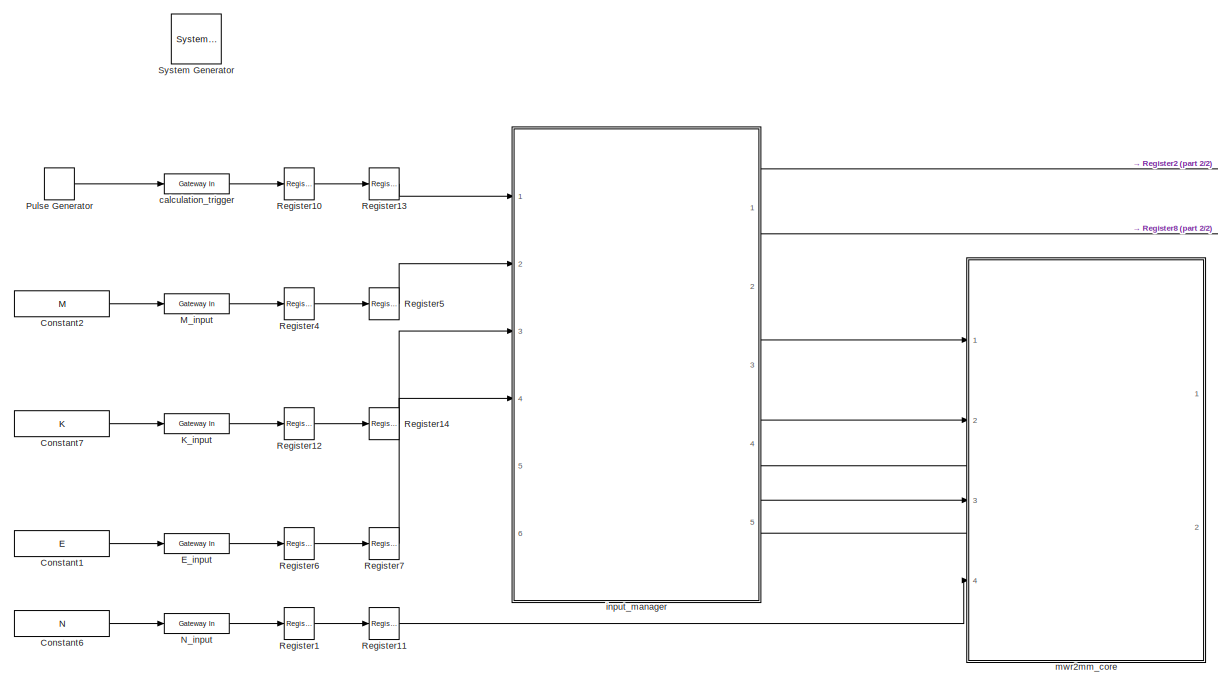
[diagram: root canvas - part 1/2, most of the canvas]
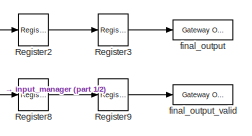
[diagram: root canvas - part 2/2, top right region]
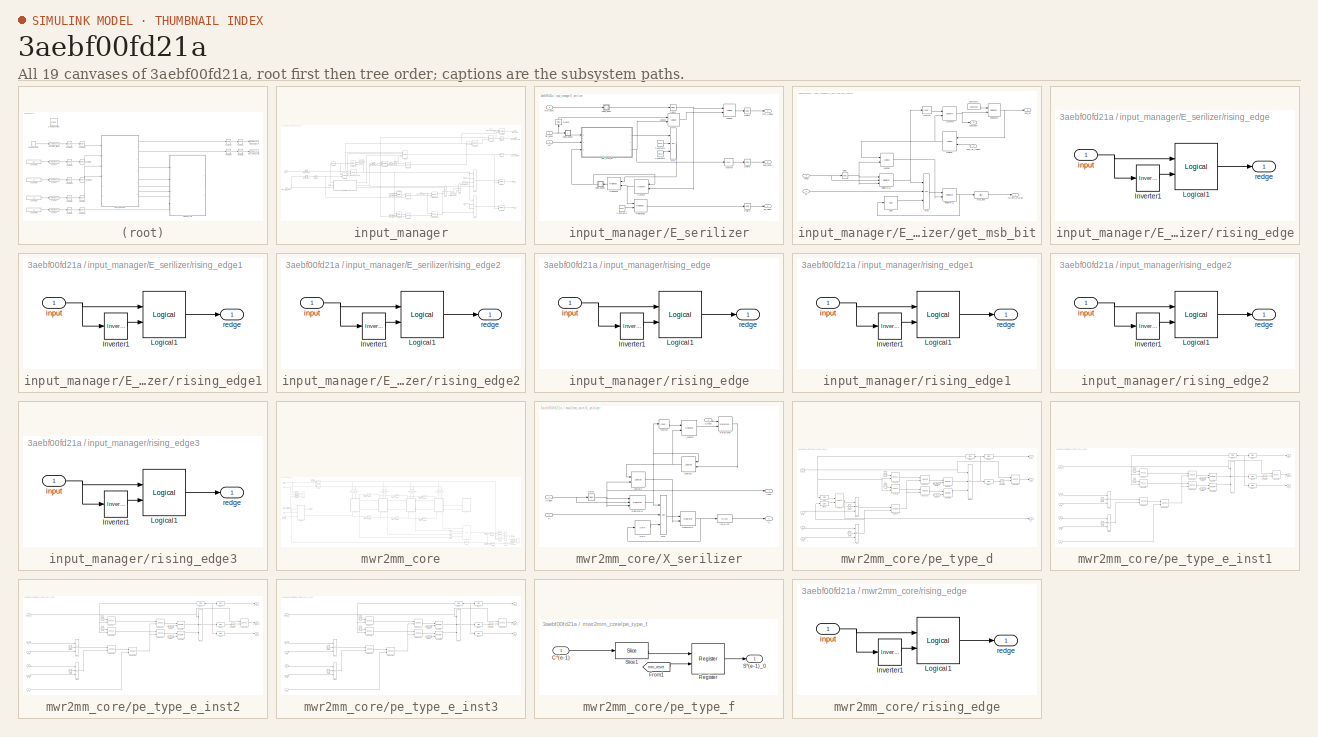
[diagram: thumbnail index - all 19 canvases of the model, root first then tree order]
MODEL slx_3aebf00fd21a
KIND model
CONFIG AbsTol = auto
CONFIG EnableMultiTasking = off
CONFIG FixedStep = auto
CONFIG MaxStep = auto
CONFIG MinStep = auto
CONFIG RelTol = 1e-3
CONFIG SampleTimeConstraint = Unconstrained
CONFIG SolverName = VariableStepAuto
CONFIG StartTime = 0.0
CONFIG StopTime = simulation_time
BLOCK [Reference]  System Generator  REF=xbsIndex_r4/ System Generator
  AttributesFormatString = System\nGenerator
  Ports = []
  SourceBlock = xbsIndex_r4/ System Generator
  SourceType = Xilinx System Generator Block
  Tag = genX
  UserDataPersistent = on
BLOCK [Constant] Constant1
  Value = E
BLOCK [Constant] Constant2
  Value = M
BLOCK [Constant] Constant6
  Value = N
BLOCK [Constant] Constant7
  Value = K
BLOCK [Reference] E_input  REF=xbsIndex_r4/Gateway In
  Ports = [1, 1]
  SourceBlock = xbsIndex_r4/Gateway In
  SourceType = Xilinx Gateway In Block
BLOCK [Reference] K_input  REF=xbsIndex_r4/Gateway In
  Ports = [1, 1]
  SourceBlock = xbsIndex_r4/Gateway In
  SourceType = Xilinx Gateway In Block
BLOCK [Reference] M_input  REF=xbsIndex_r4/Gateway In
  Ports = [1, 1]
  SourceBlock = xbsIndex_r4/Gateway In
  SourceType = Xilinx Gateway In Block
BLOCK [Reference] N_input  REF=xbsIndex_r4/Gateway In
  Ports = [1, 1]
  SourceBlock = xbsIndex_r4/Gateway In
  SourceType = Xilinx Gateway In Block
BLOCK [DiscretePulseGenerator] Pulse Generator
  Period = 10000
  PhaseDelay = 30
  Ports = [0, 1]
  SampleTime = ts
BLOCK [Reference] Register1  REF=xbsIndex_r4/Register
  Ports = [1, 1]
  SourceBlock = xbsIndex_r4/Register
  SourceType = Xilinx Register Block
BLOCK [Reference] Register10  REF=xbsIndex_r4/Register
  Ports = [1, 1]
  SourceBlock = xbsIndex_r4/Register
  SourceType = Xilinx Register Block
BLOCK [Reference] Register11  REF=xbsIndex_r4/Register
  Ports = [1, 1]
  SourceBlock = xbsIndex_r4/Register
  SourceType = Xilinx Register Block
BLOCK [Reference] Register12  REF=xbsIndex_r4/Register
  Ports = [1, 1]
  SourceBlock = xbsIndex_r4/Register
  SourceType = Xilinx Register Block
BLOCK [Reference] Register13  REF=xbsIndex_r4/Register
  Ports = [1, 1]
  SourceBlock = xbsIndex_r4/Register
  SourceType = Xilinx Register Block
BLOCK [Reference] Register14  REF=xbsIndex_r4/Register
  Ports = [1, 1]
  SourceBlock = xbsIndex_r4/Register
  SourceType = Xilinx Register Block
BLOCK [Reference] Register2  REF=xbsIndex_r4/Register
  Ports = [1, 1]
  SourceBlock = xbsIndex_r4/Register
  SourceType = Xilinx Register Block
BLOCK [Reference] Register3  REF=xbsIndex_r4/Register
  Ports = [1, 1]
  SourceBlock = xbsIndex_r4/Register
  SourceType = Xilinx Register Block
BLOCK [Reference] Register4  REF=xbsIndex_r4/Register
  Ports = [1, 1]
  SourceBlock = xbsIndex_r4/Register
  SourceType = Xilinx Register Block
BLOCK [Reference] Register5  REF=xbsIndex_r4/Register
  Ports = [1, 1]
  SourceBlock = xbsIndex_r4/Register
  SourceType = Xilinx Register Block
BLOCK [Reference] Register6  REF=xbsIndex_r4/Register
  Ports = [1, 1]
  SourceBlock = xbsIndex_r4/Register
  SourceType = Xilinx Register Block
BLOCK [Reference] Register7  REF=xbsIndex_r4/Register
  Ports = [1, 1]
  SourceBlock = xbsIndex_r4/Register
  SourceType = Xilinx Register Block
BLOCK [Reference] Register8  REF=xbsIndex_r4/Register
  Ports = [1, 1]
  SourceBlock = xbsIndex_r4/Register
  SourceType = Xilinx Register Block
BLOCK [Reference] Register9  REF=xbsIndex_r4/Register
  Ports = [1, 1]
  SourceBlock = xbsIndex_r4/Register
  SourceType = Xilinx Register Block
BLOCK [Reference] calculation_trigger  REF=xbsIndex_r4/Gateway In
  Ports = [1, 1]
  SourceBlock = xbsIndex_r4/Gateway In
  SourceType = Xilinx Gateway In Block
BLOCK [Reference] final_output  REF=xbsIndex_r4/Gateway Out
  Ports = [1, 1]
  SourceBlock = xbsIndex_r4/Gateway Out
  SourceType = Xilinx Gateway Out Block
BLOCK [Reference] final_output_valid  REF=xbsIndex_r4/Gateway Out
  Ports = [1, 1]
  SourceBlock = xbsIndex_r4/Gateway Out
  SourceType = Xilinx Gateway Out Block
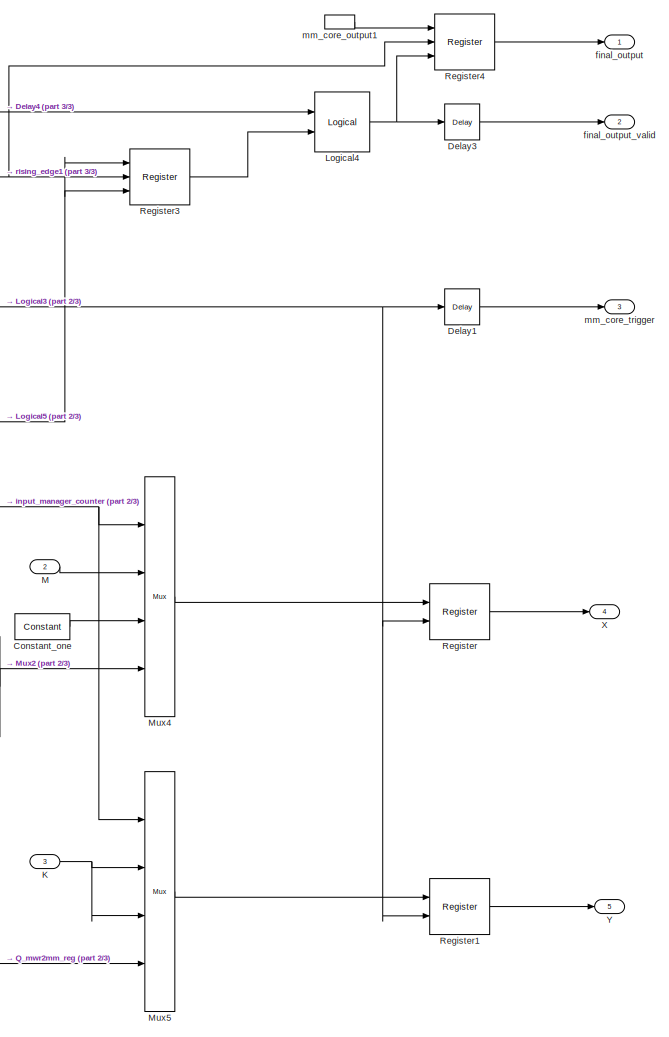
[diagram: input_manager - part 1/3, right side, full height]
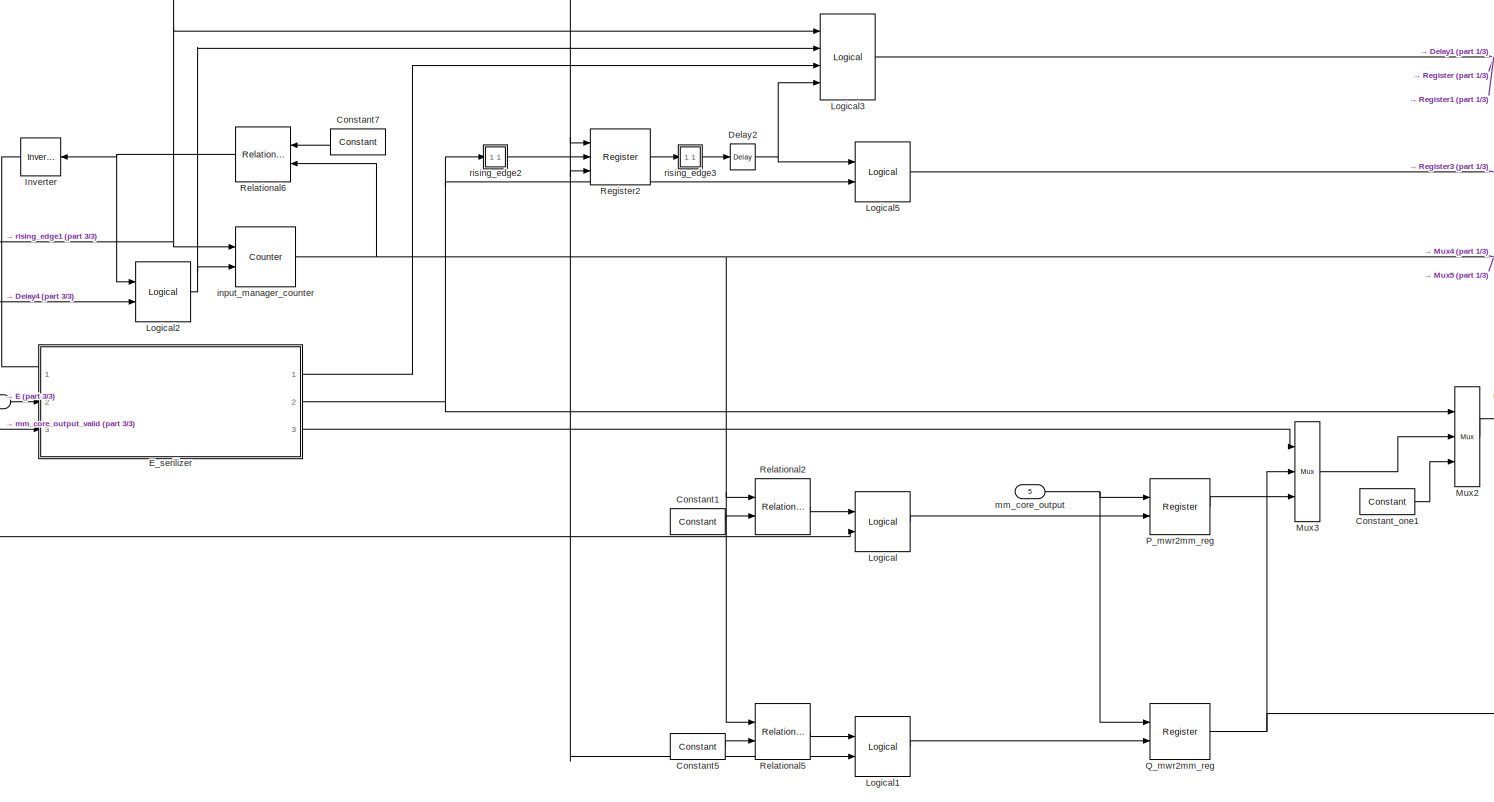
[diagram: input_manager - part 2/3, center side, full height]
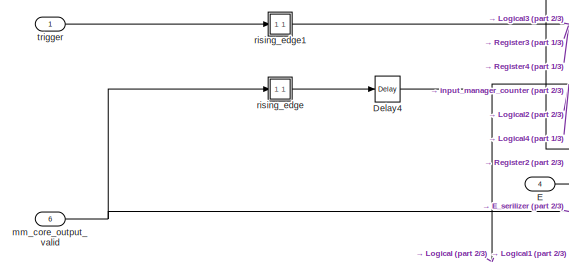
[diagram: input_manager - part 3/3, middle left region]
BLOCK [SubSystem] input_manager
  PortSchema = {"entries":[{"content":{"sides":[{"content":{"connectorIds":["In1","In2","In3","In4"]},"type":"ConnectorPlacement.EquallySpacedRectSide","uuid":"5fbe749b-9735-44fd-a2bb-776500a26cf7"},{"content":{"connectorIds":["Out1","Out2","Out3","Out4","Out5","In5","In6"],"side":"RIGHT"},"type":"ConnectorPlacement.EquallySpacedRectSide","uuid":"76eb6fff-7389-4eb3-99ce-2472142167d3"},{"content":{"connectorIds":...<+298ch>
  Ports = [6, 5]
  RequestExecContextInheritance = off
BLOCK [Reference] input_manager/Constant1  REF=xbsIndex_r4/Constant
  Ports = [0, 1]
  SourceBlock = xbsIndex_r4/Constant
  SourceType = Xilinx Constant Block Block
BLOCK [Reference] input_manager/Constant5  REF=xbsIndex_r4/Constant
  Ports = [0, 1]
  SourceBlock = xbsIndex_r4/Constant
  SourceType = Xilinx Constant Block Block
BLOCK [Reference] input_manager/Constant7  REF=xbsIndex_r4/Constant
  Ports = [0, 1]
  SourceBlock = xbsIndex_r4/Constant
  SourceType = Xilinx Constant Block Block
BLOCK [Reference] input_manager/Constant_one  REF=xbsIndex_r4/Constant
  Ports = [0, 1]
  SourceBlock = xbsIndex_r4/Constant
  SourceType = Xilinx Constant Block Block
BLOCK [Reference] input_manager/Constant_one1  REF=xbsIndex_r4/Constant
  Ports = [0, 1]
  SourceBlock = xbsIndex_r4/Constant
  SourceType = Xilinx Constant Block Block
BLOCK [Reference] input_manager/Delay1  REF=xbsIndex_r4/Delay
  Ports = [1, 1]
  SourceBlock = xbsIndex_r4/Delay
  SourceType = Xilinx Delay Block
BLOCK [Reference] input_manager/Delay2  REF=xbsIndex_r4/Delay
  Ports = [1, 1]
  SourceBlock = xbsIndex_r4/Delay
  SourceType = Xilinx Delay Block
BLOCK [Reference] input_manager/Delay3  REF=xbsIndex_r4/Delay
  Ports = [1, 1]
  SourceBlock = xbsIndex_r4/Delay
  SourceType = Xilinx Delay Block
BLOCK [Reference] input_manager/Delay4  REF=xbsIndex_r4/Delay
  Ports = [1, 1]
  SourceBlock = xbsIndex_r4/Delay
  SourceType = Xilinx Delay Block
BLOCK [Inport] input_manager/E
  Port = 4
BLOCK [SubSystem] input_manager/E_serilizer
  Ports = [3, 3]
  RequestExecContextInheritance = off
BLOCK [Reference] input_manager/E_serilizer/Constant1  REF=xbsIndex_r4/Constant
  Ports = [0, 1]
  SourceBlock = xbsIndex_r4/Constant
  SourceType = Xilinx Constant Block Block
BLOCK [Reference] input_manager/E_serilizer/Constant2  REF=xbsIndex_r4/Constant
  Ports = [0, 1]
  SourceBlock = xbsIndex_r4/Constant
  SourceType = Xilinx Constant Block Block
BLOCK [Reference] input_manager/E_serilizer/Constant3  REF=xbsIndex_r4/Constant
  Ports = [0, 1]
  SourceBlock = xbsIndex_r4/Constant
  SourceType = Xilinx Constant Block Block
BLOCK [Reference] input_manager/E_serilizer/Counter  REF=xbsIndex_r4/Counter
  Ports = [2, 1]
  SourceBlock = xbsIndex_r4/Counter
  SourceType = Xilinx Counter Block
BLOCK [Reference] input_manager/E_serilizer/Delay1  REF=xbsIndex_r4/Delay
  Ports = [1, 1]
  SourceBlock = xbsIndex_r4/Delay
  SourceType = Xilinx Delay Block
BLOCK [Reference] input_manager/E_serilizer/Delay2  REF=xbsIndex_r4/Delay
  Ports = [1, 1]
  SourceBlock = xbsIndex_r4/Delay
  SourceType = Xilinx Delay Block
BLOCK [Reference] input_manager/E_serilizer/Delay3  REF=xbsIndex_r4/Delay
  Ports = [1, 1]
  SourceBlock = xbsIndex_r4/Delay
  SourceType = Xilinx Delay Block
BLOCK [Reference] input_manager/E_serilizer/Delay4  REF=xbsIndex_r4/Delay
  Ports = [1, 1]
  SourceBlock = xbsIndex_r4/Delay
  SourceType = Xilinx Delay Block
BLOCK [Reference] input_manager/E_serilizer/Delay5  REF=xbsIndex_r4/Delay
  NameLocation = right
  Ports = [1, 1]
  SourceBlock = xbsIndex_r4/Delay
  SourceType = Xilinx Delay Block
BLOCK [Inport] input_manager/E_serilizer/E
  Port = 2
BLOCK [Reference] input_manager/E_serilizer/Inverter  REF=xbsIndex_r4/Inverter
  Ports = [1, 1]
  SourceBlock = xbsIndex_r4/Inverter
  SourceType = Xilinx Inverter Block
BLOCK [Reference] input_manager/E_serilizer/Logical1  REF=xbsIndex_r4/Logical
  Ports = [2, 1]
  SourceBlock = xbsIndex_r4/Logical
  SourceType = Xilinx Logical Block Block
BLOCK [Reference] input_manager/E_serilizer/Logical2  REF=xbsIndex_r4/Logical
  Ports = [2, 1]
  SourceBlock = xbsIndex_r4/Logical
  SourceType = Xilinx Logical Block Block
BLOCK [Reference] input_manager/E_serilizer/Mux  REF=xbsIndex_r4/Mux
  Ports = [3, 1]
  SourceBlock = xbsIndex_r4/Mux
  SourceType = Xilinx Bus Multiplexer Block
BLOCK [Reference] input_manager/E_serilizer/Relational  REF=xbsIndex_r4/Relational
  Ports = [2, 1]
  SourceBlock = xbsIndex_r4/Relational
  SourceType = Xilinx Arithmetic Relational Operator Block
BLOCK [Reference] input_manager/E_serilizer/Relational1  REF=xbsIndex_r4/Relational
  Ports = [2, 1]
  SourceBlock = xbsIndex_r4/Relational
  SourceType = Xilinx Arithmetic Relational Operator Block
BLOCK [SubSystem] input_manager/E_serilizer/get_msb_bit
  Ports = [3, 3]
  RequestExecContextInheritance = off
BLOCK [Reference] input_manager/E_serilizer/get_msb_bit/Constant6  REF=xbsIndex_r4/Constant
  Ports = [0, 1]
  SourceBlock = xbsIndex_r4/Constant
  SourceType = Xilinx Constant Block Block
BLOCK [Reference] input_manager/E_serilizer/get_msb_bit/Delay  REF=xbsIndex_r4/Delay
  Ports = [1, 1]
  SourceBlock = xbsIndex_r4/Delay
  SourceType = Xilinx Delay Block
BLOCK [Inport] input_manager/E_serilizer/get_msb_bit/E
  Port = 2
BLOCK [Reference] input_manager/E_serilizer/get_msb_bit/Inverter  REF=xbsIndex_r4/Inverter
  Ports = [1, 1]
  SourceBlock = xbsIndex_r4/Inverter
  SourceType = Xilinx Inverter Block
BLOCK [Reference] input_manager/E_serilizer/get_msb_bit/Logical1  REF=xbsIndex_r4/Logical
  Ports = [2, 1]
  SourceBlock = xbsIndex_r4/Logical
  SourceType = Xilinx Logical Block Block
BLOCK [Reference] input_manager/E_serilizer/get_msb_bit/Logical2  REF=xbsIndex_r4/Logical
  Ports = [2, 1]
  SourceBlock = xbsIndex_r4/Logical
  SourceType = Xilinx Logical Block Block
BLOCK [Reference] input_manager/E_serilizer/get_msb_bit/Mux  REF=xbsIndex_r4/Mux
  Ports = [3, 1]
  SourceBlock = xbsIndex_r4/Mux
  SourceType = Xilinx Bus Multiplexer Block
BLOCK [Reference] input_manager/E_serilizer/get_msb_bit/Register11  REF=xbsIndex_r4/Register
  Ports = [2, 1]
  SourceBlock = xbsIndex_r4/Register
  SourceType = Xilinx Register Block
BLOCK [Reference] input_manager/E_serilizer/get_msb_bit/Register12  REF=xbsIndex_r4/Register
  Ports = [3, 1]
  SourceBlock = xbsIndex_r4/Register
  SourceType = Xilinx Register Block
BLOCK [Reference] input_manager/E_serilizer/get_msb_bit/Relational  REF=xbsIndex_r4/Relational
  Ports = [2, 1]
  SourceBlock = xbsIndex_r4/Relational
  SourceType = Xilinx Arithmetic Relational Operator Block
BLOCK [Reference] input_manager/E_serilizer/get_msb_bit/Shift  REF=xbsIndex_r4/Shift
  Ports = [1, 1]
  SourceBlock = xbsIndex_r4/Shift
  SourceType = Xilinx Binary Shift Operator Block
BLOCK [Outport] input_manager/E_serilizer/get_msb_bit/current_msb_bit
BLOCK [Reference] input_manager/E_serilizer/get_msb_bit/i_counter  REF=xbsIndex_r4/Counter
  Ports = [2, 1]
  SourceBlock = xbsIndex_r4/Counter
  SourceType = Xilinx Counter Block
BLOCK [Outport] input_manager/E_serilizer/get_msb_bit/loop_en
  Port = 3
BLOCK [Outport] input_manager/E_serilizer/get_msb_bit/loop_index
  Port = 2
BLOCK [Reference] input_manager/E_serilizer/get_msb_bit/msb_slice  REF=xbsIndex_r4/Slice
  Ports = [1, 1]
  SourceBlock = xbsIndex_r4/Slice
  SourceType = Xilinx Bit Slice Extractor Block
BLOCK [Inport] input_manager/E_serilizer/get_msb_bit/next_bit_trigger
  Port = 3
BLOCK [Inport] input_manager/E_serilizer/get_msb_bit/reset
BLOCK [Inport] input_manager/E_serilizer/init_done
BLOCK [Outport] input_manager/E_serilizer/loop_done
  Port = 2
BLOCK [Inport] input_manager/E_serilizer/mm_done
  Port = 3
BLOCK [Outport] input_manager/E_serilizer/mm_trigger
BLOCK [Outport] input_manager/E_serilizer/pq_select
  Port = 3
BLOCK [SubSystem] input_manager/E_serilizer/rising_edge
  Ports = [1, 1]
  RequestExecContextInheritance = off
BLOCK [Reference] input_manager/E_serilizer/rising_edge/Inverter1  REF=xbsIndex_r4/Inverter
  Ports = [1, 1]
  SourceBlock = xbsIndex_r4/Inverter
  SourceType = Xilinx Inverter Block
BLOCK [Reference] input_manager/E_serilizer/rising_edge/Logical1  REF=xbsIndex_r4/Logical
  Ports = [2, 1]
  SourceBlock = xbsIndex_r4/Logical
  SourceType = Xilinx Logical Block Block
BLOCK [Inport] input_manager/E_serilizer/rising_edge/input
BLOCK [Outport] input_manager/E_serilizer/rising_edge/redge
BLOCK [SubSystem] input_manager/E_serilizer/rising_edge1
  Ports = [1, 1]
  RequestExecContextInheritance = off
BLOCK [Reference] input_manager/E_serilizer/rising_edge1/Inverter1  REF=xbsIndex_r4/Inverter
  Ports = [1, 1]
  SourceBlock = xbsIndex_r4/Inverter
  SourceType = Xilinx Inverter Block
BLOCK [Reference] input_manager/E_serilizer/rising_edge1/Logical1  REF=xbsIndex_r4/Logical
  Ports = [2, 1]
  SourceBlock = xbsIndex_r4/Logical
  SourceType = Xilinx Logical Block Block
BLOCK [Inport] input_manager/E_serilizer/rising_edge1/input
BLOCK [Outport] input_manager/E_serilizer/rising_edge1/redge
BLOCK [SubSystem] input_manager/E_serilizer/rising_edge2
  Ports = [1, 1]
  RequestExecContextInheritance = off
BLOCK [Reference] input_manager/E_serilizer/rising_edge2/Inverter1  REF=xbsIndex_r4/Inverter
  Ports = [1, 1]
  SourceBlock = xbsIndex_r4/Inverter
  SourceType = Xilinx Inverter Block
BLOCK [Reference] input_manager/E_serilizer/rising_edge2/Logical1  REF=xbsIndex_r4/Logical
  Ports = [2, 1]
  SourceBlock = xbsIndex_r4/Logical
  SourceType = Xilinx Logical Block Block
BLOCK [Inport] input_manager/E_serilizer/rising_edge2/input
BLOCK [Outport] input_manager/E_serilizer/rising_edge2/redge
BLOCK [Reference] input_manager/Inverter  REF=xbsIndex_r4/Inverter
  Ports = [1, 1]
  SourceBlock = xbsIndex_r4/Inverter
  SourceType = Xilinx Inverter Block
BLOCK [Inport] input_manager/K
  Port = 3
BLOCK [Reference] input_manager/Logical  REF=xbsIndex_r4/Logical
  Ports = [2, 1]
  SourceBlock = xbsIndex_r4/Logical
  SourceType = Xilinx Logical Block Block
BLOCK [Reference] input_manager/Logical1  REF=xbsIndex_r4/Logical
  Ports = [2, 1]
  SourceBlock = xbsIndex_r4/Logical
  SourceType = Xilinx Logical Block Block
BLOCK [Reference] input_manager/Logical2  REF=xbsIndex_r4/Logical
  Ports = [2, 1]
  SourceBlock = xbsIndex_r4/Logical
  SourceType = Xilinx Logical Block Block
BLOCK [Reference] input_manager/Logical3  REF=xbsIndex_r4/Logical
  Ports = [4, 1]
  SourceBlock = xbsIndex_r4/Logical
  SourceType = Xilinx Logical Block Block
BLOCK [Reference] input_manager/Logical4  REF=xbsIndex_r4/Logical
  Ports = [2, 1]
  SourceBlock = xbsIndex_r4/Logical
  SourceType = Xilinx Logical Block Block
BLOCK [Reference] input_manager/Logical5  REF=xbsIndex_r4/Logical
  Ports = [2, 1]
  SourceBlock = xbsIndex_r4/Logical
  SourceType = Xilinx Logical Block Block
BLOCK [Inport] input_manager/M
  Port = 2
BLOCK [Reference] input_manager/Mux2  REF=xbsIndex_r4/Mux
  Ports = [3, 1]
  SourceBlock = xbsIndex_r4/Mux
  SourceType = Xilinx Bus Multiplexer Block
BLOCK [Reference] input_manager/Mux3  REF=xbsIndex_r4/Mux
  Ports = [3, 1]
  SourceBlock = xbsIndex_r4/Mux
  SourceType = Xilinx Bus Multiplexer Block
BLOCK [Reference] input_manager/Mux4  REF=xbsIndex_r4/Mux
  Ports = [4, 1]
  SourceBlock = xbsIndex_r4/Mux
  SourceType = Xilinx Bus Multiplexer Block
BLOCK [Reference] input_manager/Mux5  REF=xbsIndex_r4/Mux
  Ports = [4, 1]
  SourceBlock = xbsIndex_r4/Mux
  SourceType = Xilinx Bus Multiplexer Block
BLOCK [Reference] input_manager/P_mwr2mm_reg  REF=xbsIndex_r4/Register
  Ports = [2, 1]
  SourceBlock = xbsIndex_r4/Register
  SourceType = Xilinx Register Block
BLOCK [Reference] input_manager/Q_mwr2mm_reg  REF=xbsIndex_r4/Register
  Ports = [2, 1]
  SourceBlock = xbsIndex_r4/Register
  SourceType = Xilinx Register Block
BLOCK [Reference] input_manager/Register  REF=xbsIndex_r4/Register
  Ports = [2, 1]
  SourceBlock = xbsIndex_r4/Register
  SourceType = Xilinx Register Block
BLOCK [Reference] input_manager/Register1  REF=xbsIndex_r4/Register
  Ports = [2, 1]
  SourceBlock = xbsIndex_r4/Register
  SourceType = Xilinx Register Block
BLOCK [Reference] input_manager/Register2  REF=xbsIndex_r4/Register
  Ports = [3, 1]
  SourceBlock = xbsIndex_r4/Register
  SourceType = Xilinx Register Block
BLOCK [Reference] input_manager/Register3  REF=xbsIndex_r4/Register
  Ports = [3, 1]
  SourceBlock = xbsIndex_r4/Register
  SourceType = Xilinx Register Block
BLOCK [Reference] input_manager/Register4  REF=xbsIndex_r4/Register
  Ports = [3, 1]
  SourceBlock = xbsIndex_r4/Register
  SourceType = Xilinx Register Block
BLOCK [Reference] input_manager/Relational2  REF=xbsIndex_r4/Relational
  Ports = [2, 1]
  SourceBlock = xbsIndex_r4/Relational
  SourceType = Xilinx Arithmetic Relational Operator Block
BLOCK [Reference] input_manager/Relational5  REF=xbsIndex_r4/Relational
  Ports = [2, 1]
  SourceBlock = xbsIndex_r4/Relational
  SourceType = Xilinx Arithmetic Relational Operator Block
BLOCK [Reference] input_manager/Relational6  REF=xbsIndex_r4/Relational
  Ports = [2, 1]
  SourceBlock = xbsIndex_r4/Relational
  SourceType = Xilinx Arithmetic Relational Operator Block
BLOCK [Outport] input_manager/X
  Port = 4
BLOCK [Outport] input_manager/Y
  Port = 5
BLOCK [Outport] input_manager/final_output
BLOCK [Outport] input_manager/final_output_valid
  Port = 2
BLOCK [Reference] input_manager/input_manager_counter  REF=xbsIndex_r4/Counter
  Ports = [2, 1]
  SourceBlock = xbsIndex_r4/Counter
  SourceType = Xilinx Counter Block
BLOCK [Inport] input_manager/mm_core_output
  Port = 5
BLOCK [InportShadow] input_manager/mm_core_output1
  Port = 5
BLOCK [Inport] input_manager/mm_core_output_valid
  Port = 6
BLOCK [Outport] input_manager/mm_core_trigger
  Port = 3
BLOCK [SubSystem] input_manager/rising_edge
  Ports = [1, 1]
  RequestExecContextInheritance = off
BLOCK [Reference] input_manager/rising_edge/Inverter1  REF=xbsIndex_r4/Inverter
  Ports = [1, 1]
  SourceBlock = xbsIndex_r4/Inverter
  SourceType = Xilinx Inverter Block
BLOCK [Reference] input_manager/rising_edge/Logical1  REF=xbsIndex_r4/Logical
  Ports = [2, 1]
  SourceBlock = xbsIndex_r4/Logical
  SourceType = Xilinx Logical Block Block
BLOCK [Inport] input_manager/rising_edge/input
BLOCK [Outport] input_manager/rising_edge/redge
BLOCK [SubSystem] input_manager/rising_edge1
  Ports = [1, 1]
  RequestExecContextInheritance = off
BLOCK [Reference] input_manager/rising_edge1/Inverter1  REF=xbsIndex_r4/Inverter
  Ports = [1, 1]
  SourceBlock = xbsIndex_r4/Inverter
  SourceType = Xilinx Inverter Block
BLOCK [Reference] input_manager/rising_edge1/Logical1  REF=xbsIndex_r4/Logical
  Ports = [2, 1]
  SourceBlock = xbsIndex_r4/Logical
  SourceType = Xilinx Logical Block Block
BLOCK [Inport] input_manager/rising_edge1/input
BLOCK [Outport] input_manager/rising_edge1/redge
BLOCK [SubSystem] input_manager/rising_edge2
  Ports = [1, 1]
  RequestExecContextInheritance = off
BLOCK [Reference] input_manager/rising_edge2/Inverter1  REF=xbsIndex_r4/Inverter
  Ports = [1, 1]
  SourceBlock = xbsIndex_r4/Inverter
  SourceType = Xilinx Inverter Block
BLOCK [Reference] input_manager/rising_edge2/Logical1  REF=xbsIndex_r4/Logical
  Ports = [2, 1]
  SourceBlock = xbsIndex_r4/Logical
  SourceType = Xilinx Logical Block Block
BLOCK [Inport] input_manager/rising_edge2/input
BLOCK [Outport] input_manager/rising_edge2/redge
BLOCK [SubSystem] input_manager/rising_edge3
  Ports = [1, 1]
  RequestExecContextInheritance = off
BLOCK [Reference] input_manager/rising_edge3/Inverter1  REF=xbsIndex_r4/Inverter
  Ports = [1, 1]
  SourceBlock = xbsIndex_r4/Inverter
  SourceType = Xilinx Inverter Block
BLOCK [Reference] input_manager/rising_edge3/Logical1  REF=xbsIndex_r4/Logical
  Ports = [2, 1]
  SourceBlock = xbsIndex_r4/Logical
  SourceType = Xilinx Logical Block Block
BLOCK [Inport] input_manager/rising_edge3/input
BLOCK [Outport] input_manager/rising_edge3/redge
BLOCK [Inport] input_manager/trigger
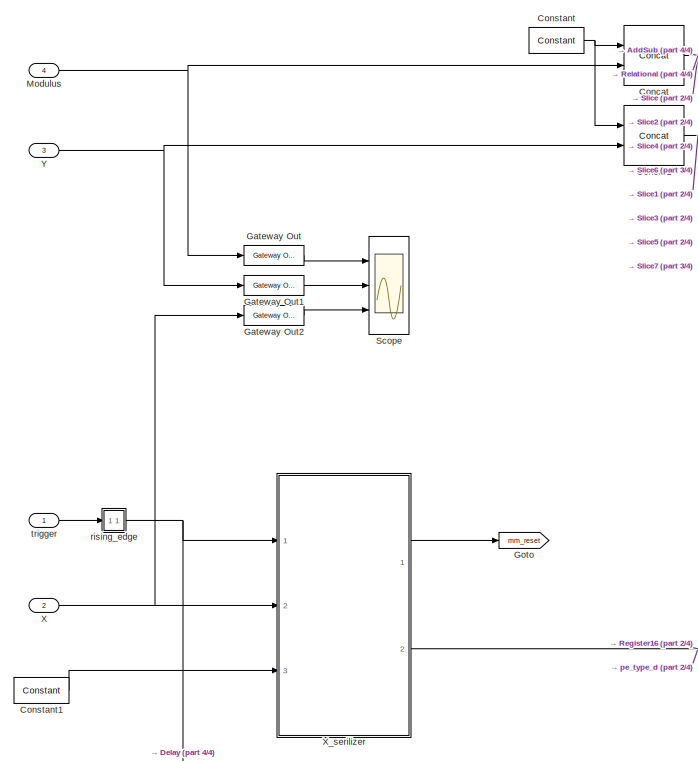
[diagram: mwr2mm_core - part 1/4, top left region]
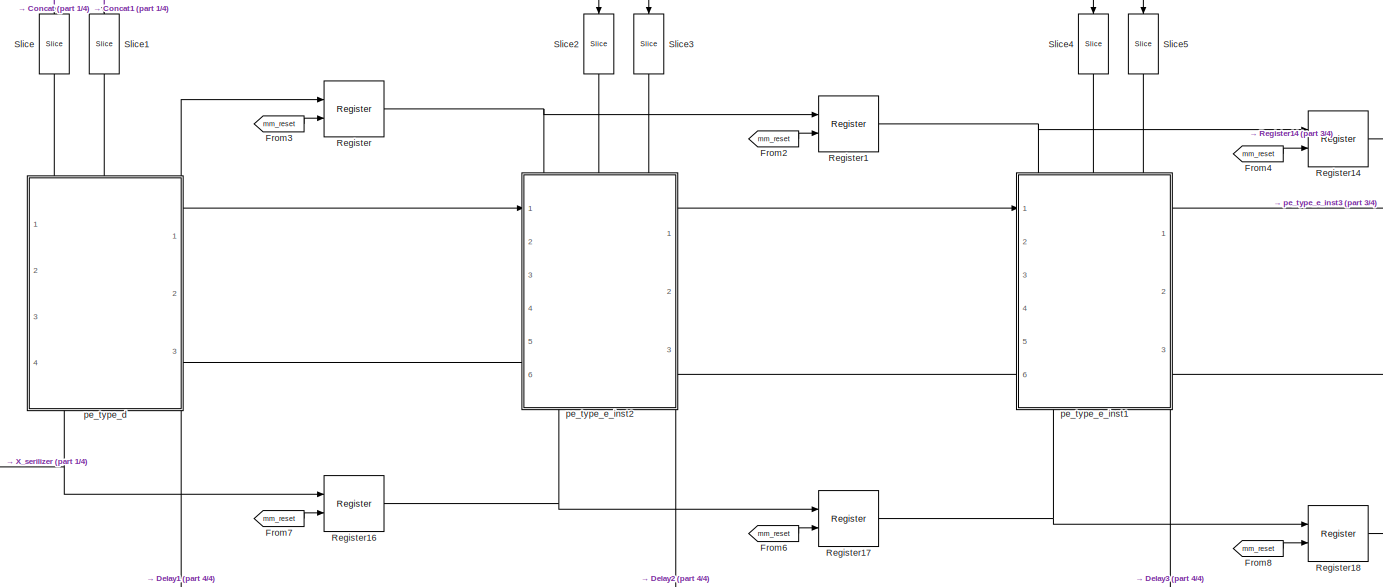
[diagram: mwr2mm_core - part 2/4, central region]
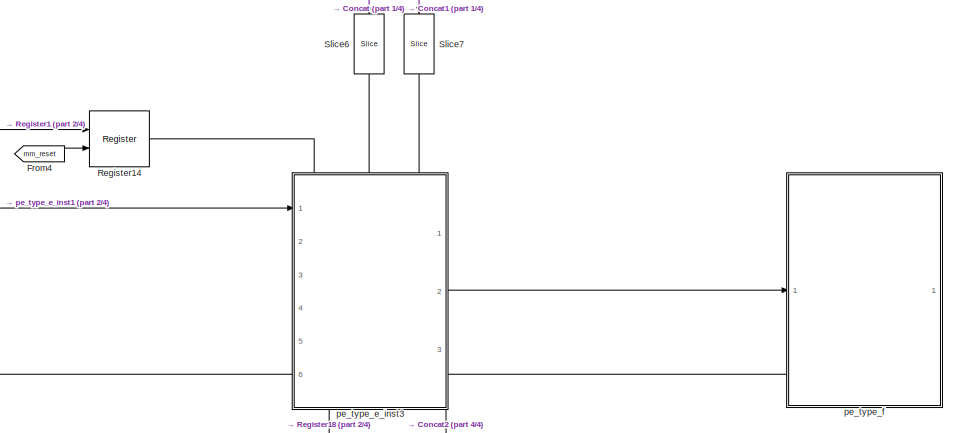
[diagram: mwr2mm_core - part 3/4, middle right region]
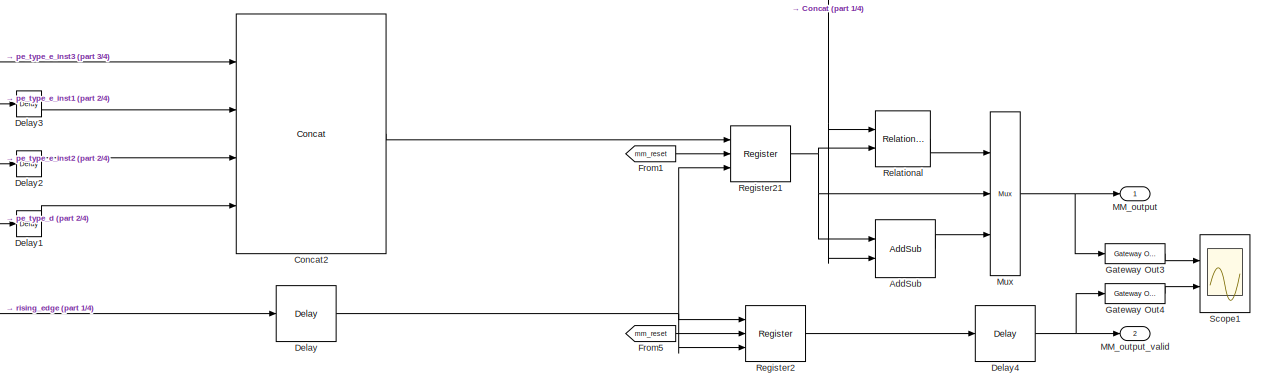
[diagram: mwr2mm_core - part 4/4, bottom right region]
BLOCK [SubSystem] mwr2mm_core
  PortSchema = {"entries":[{"content":{"sides":[{"content":{"connectorIds":["In1","In2","In3","Out1","Out2","In4"]},"type":"ConnectorPlacement.EquallySpacedRectSide","uuid":"3849742e-47e7-45e9-813d-75e7ec89f679"},{"content":{"connectorIds":[],"side":"RIGHT"},"type":"ConnectorPlacement.EquallySpacedRectSide","uuid":"56ecc40d-88ec-4579-a1b5-d15bded2ad6c"},{"content":{"connectorIds":[],"side":"TOP"},"type":"Connect...<+266ch>
  Ports = [4, 2]
  RequestExecContextInheritance = off
BLOCK [Reference] mwr2mm_core/AddSub  REF=xbsIndex_r4/AddSub
  Ports = [2, 1]
  SourceBlock = xbsIndex_r4/AddSub
  SourceType = Xilinx Adder/Subtracter Block
BLOCK [Reference] mwr2mm_core/Concat  REF=xbsIndex_r4/Concat
  Ports = [2, 1]
  SourceBlock = xbsIndex_r4/Concat
  SourceType = Xilinx Bus Concatenator Block
BLOCK [Reference] mwr2mm_core/Concat1  REF=xbsIndex_r4/Concat
  Ports = [2, 1]
  SourceBlock = xbsIndex_r4/Concat
  SourceType = Xilinx Bus Concatenator Block
BLOCK [Reference] mwr2mm_core/Concat2  REF=xbsIndex_r4/Concat
  Ports = [4, 1]
  SourceBlock = xbsIndex_r4/Concat
  SourceType = Xilinx Bus Concatenator Block
BLOCK [Reference] mwr2mm_core/Constant  REF=xbsIndex_r4/Constant
  Ports = [0, 1]
  SourceBlock = xbsIndex_r4/Constant
  SourceType = Xilinx Constant Block Block
BLOCK [Reference] mwr2mm_core/Constant1  REF=xbsIndex_r4/Constant
  Ports = [0, 1]
  SourceBlock = xbsIndex_r4/Constant
  SourceType = Xilinx Constant Block Block
BLOCK [Reference] mwr2mm_core/Delay  REF=xbsIndex_r4/Delay
  Ports = [1, 1]
  SourceBlock = xbsIndex_r4/Delay
  SourceType = Xilinx Delay Block
BLOCK [Reference] mwr2mm_core/Delay1  REF=xbsIndex_r4/Delay
  Ports = [1, 1]
  SourceBlock = xbsIndex_r4/Delay
  SourceType = Xilinx Delay Block
BLOCK [Reference] mwr2mm_core/Delay2  REF=xbsIndex_r4/Delay
  Ports = [1, 1]
  SourceBlock = xbsIndex_r4/Delay
  SourceType = Xilinx Delay Block
BLOCK [Reference] mwr2mm_core/Delay3  REF=xbsIndex_r4/Delay
  Ports = [1, 1]
  SourceBlock = xbsIndex_r4/Delay
  SourceType = Xilinx Delay Block
BLOCK [Reference] mwr2mm_core/Delay4  REF=xbsIndex_r4/Delay
  Ports = [1, 1]
  SourceBlock = xbsIndex_r4/Delay
  SourceType = Xilinx Delay Block
BLOCK [From] mwr2mm_core/From1
  GotoTag = mm_reset
  TagVisibility = global
BLOCK [From] mwr2mm_core/From2
  GotoTag = mm_reset
  TagVisibility = global
BLOCK [From] mwr2mm_core/From3
  GotoTag = mm_reset
  TagVisibility = global
BLOCK [From] mwr2mm_core/From4
  GotoTag = mm_reset
  TagVisibility = global
BLOCK [From] mwr2mm_core/From5
  GotoTag = mm_reset
  TagVisibility = global
BLOCK [From] mwr2mm_core/From6
  GotoTag = mm_reset
  TagVisibility = global
BLOCK [From] mwr2mm_core/From7
  GotoTag = mm_reset
  TagVisibility = global
BLOCK [From] mwr2mm_core/From8
  GotoTag = mm_reset
  TagVisibility = global
BLOCK [Reference] mwr2mm_core/Gateway Out  REF=xbsIndex_r4/Gateway Out
  Ports = [1, 1]
  SourceBlock = xbsIndex_r4/Gateway Out
  SourceType = Xilinx Gateway Out Block
BLOCK [Reference] mwr2mm_core/Gateway Out1  REF=xbsIndex_r4/Gateway Out
  Ports = [1, 1]
  SourceBlock = xbsIndex_r4/Gateway Out
  SourceType = Xilinx Gateway Out Block
BLOCK [Reference] mwr2mm_core/Gateway Out2  REF=xbsIndex_r4/Gateway Out
  Ports = [1, 1]
  SourceBlock = xbsIndex_r4/Gateway Out
  SourceType = Xilinx Gateway Out Block
BLOCK [Reference] mwr2mm_core/Gateway Out3  REF=xbsIndex_r4/Gateway Out
  Ports = [1, 1]
  SourceBlock = xbsIndex_r4/Gateway Out
  SourceType = Xilinx Gateway Out Block
BLOCK [Reference] mwr2mm_core/Gateway Out4  REF=xbsIndex_r4/Gateway Out
  Ports = [1, 1]
  SourceBlock = xbsIndex_r4/Gateway Out
  SourceType = Xilinx Gateway Out Block
BLOCK [Goto] mwr2mm_core/Goto
  GotoTag = mm_reset
  TagVisibility = global
BLOCK [Outport] mwr2mm_core/MM_output
BLOCK [Outport] mwr2mm_core/MM_output_valid
  Port = 2
BLOCK [Inport] mwr2mm_core/Modulus
  Port = 4
BLOCK [Reference] mwr2mm_core/Mux  REF=xbsIndex_r4/Mux
  Ports = [3, 1]
  SourceBlock = xbsIndex_r4/Mux
  SourceType = Xilinx Bus Multiplexer Block
BLOCK [Reference] mwr2mm_core/Register  REF=xbsIndex_r4/Register
  Ports = [2, 1]
  SourceBlock = xbsIndex_r4/Register
  SourceType = Xilinx Register Block
BLOCK [Reference] mwr2mm_core/Register1  REF=xbsIndex_r4/Register
  Ports = [2, 1]
  SourceBlock = xbsIndex_r4/Register
  SourceType = Xilinx Register Block
BLOCK [Reference] mwr2mm_core/Register14  REF=xbsIndex_r4/Register
  Ports = [2, 1]
  SourceBlock = xbsIndex_r4/Register
  SourceType = Xilinx Register Block
BLOCK [Reference] mwr2mm_core/Register16  REF=xbsIndex_r4/Register
  Ports = [2, 1]
  SourceBlock = xbsIndex_r4/Register
  SourceType = Xilinx Register Block
BLOCK [Reference] mwr2mm_core/Register17  REF=xbsIndex_r4/Register
  Ports = [2, 1]
  SourceBlock = xbsIndex_r4/Register
  SourceType = Xilinx Register Block
BLOCK [Reference] mwr2mm_core/Register18  REF=xbsIndex_r4/Register
  Ports = [2, 1]
  SourceBlock = xbsIndex_r4/Register
  SourceType = Xilinx Register Block
BLOCK [Reference] mwr2mm_core/Register2  REF=xbsIndex_r4/Register
  Ports = [3, 1]
  SourceBlock = xbsIndex_r4/Register
  SourceType = Xilinx Register Block
BLOCK [Reference] mwr2mm_core/Register21  REF=xbsIndex_r4/Register
  Ports = [3, 1]
  SourceBlock = xbsIndex_r4/Register
  SourceType = Xilinx Register Block
BLOCK [Reference] mwr2mm_core/Relational  REF=xbsIndex_r4/Relational
  Ports = [2, 1]
  SourceBlock = xbsIndex_r4/Relational
  SourceType = Xilinx Arithmetic Relational Operator Block
BLOCK [Scope] mwr2mm_core/Scope
  Floating = off
  NumInputPorts = 3
  Ports = [3]
  ScopeSpecificationString = Simulink.scopes.TimeScopeBlockCfg('CurrentConfiguration', extmgr.ConfigurationSet(extmgr.Configuration('Core','General UI',true),extmgr.Configuration('Core','Source UI',true),extmgr.Configuration('Sources','WiredSimulink',true,'DataLoggingVariableName','ScopeData4'),extmgr.Configuration('Visuals','Time Domain',true,'SerializedDisplays',{struct('MinYLimReal','-4140.875','MaxYLimReal','37267.875','Y...<+2709ch>
BLOCK [Scope] mwr2mm_core/Scope1
  Floating = off
  NumInputPorts = 2
  Ports = [2]
  ScopeSpecificationString = Simulink.scopes.TimeScopeBlockCfg('CurrentConfiguration', extmgr.ConfigurationSet(extmgr.Configuration('Core','General UI',true),extmgr.Configuration('Core','Source UI',true),extmgr.Configuration('Sources','WiredSimulink',true,'DataLoggingVariableName','ScopeData5'),extmgr.Configuration('Visuals','Time Domain',true,'SerializedDisplays',{struct('MinYLimReal','-5969.875','MaxYLimReal','53728.875','Y...<+2036ch>
BLOCK [Reference] mwr2mm_core/Slice  REF=xbsIndex_r4/Slice
  NameLocation = left
  Ports = [1, 1]
  SourceBlock = xbsIndex_r4/Slice
  SourceType = Xilinx Bit Slice Extractor Block
BLOCK [Reference] mwr2mm_core/Slice1  REF=xbsIndex_r4/Slice
  NameLocation = left
  Ports = [1, 1]
  SourceBlock = xbsIndex_r4/Slice
  SourceType = Xilinx Bit Slice Extractor Block
BLOCK [Reference] mwr2mm_core/Slice2  REF=xbsIndex_r4/Slice
  NameLocation = left
  Ports = [1, 1]
  SourceBlock = xbsIndex_r4/Slice
  SourceType = Xilinx Bit Slice Extractor Block
BLOCK [Reference] mwr2mm_core/Slice3  REF=xbsIndex_r4/Slice
  NameLocation = left
  Ports = [1, 1]
  SourceBlock = xbsIndex_r4/Slice
  SourceType = Xilinx Bit Slice Extractor Block
BLOCK [Reference] mwr2mm_core/Slice4  REF=xbsIndex_r4/Slice
  NameLocation = left
  Ports = [1, 1]
  SourceBlock = xbsIndex_r4/Slice
  SourceType = Xilinx Bit Slice Extractor Block
BLOCK [Reference] mwr2mm_core/Slice5  REF=xbsIndex_r4/Slice
  NameLocation = left
  Ports = [1, 1]
  SourceBlock = xbsIndex_r4/Slice
  SourceType = Xilinx Bit Slice Extractor Block
BLOCK [Reference] mwr2mm_core/Slice6  REF=xbsIndex_r4/Slice
  NameLocation = left
  Ports = [1, 1]
  SourceBlock = xbsIndex_r4/Slice
  SourceType = Xilinx Bit Slice Extractor Block
BLOCK [Reference] mwr2mm_core/Slice7  REF=xbsIndex_r4/Slice
  NameLocation = left
  Ports = [1, 1]
  SourceBlock = xbsIndex_r4/Slice
  SourceType = Xilinx Bit Slice Extractor Block
BLOCK [Inport] mwr2mm_core/X
  Port = 2
BLOCK [SubSystem] mwr2mm_core/X_serilizer
  Ports = [3, 2]
  RequestExecContextInheritance = off
BLOCK [Reference] mwr2mm_core/X_serilizer/Delay  REF=xbsIndex_r4/Delay
  Ports = [1, 1]
  SourceBlock = xbsIndex_r4/Delay
  SourceType = Xilinx Delay Block
BLOCK [Reference] mwr2mm_core/X_serilizer/Inverter  REF=xbsIndex_r4/Inverter
  Ports = [1, 1]
  SourceBlock = xbsIndex_r4/Inverter
  SourceType = Xilinx Inverter Block
BLOCK [Reference] mwr2mm_core/X_serilizer/Logical1  REF=xbsIndex_r4/Logical
  Ports = [2, 1]
  SourceBlock = xbsIndex_r4/Logical
  SourceType = Xilinx Logical Block Block
BLOCK [Reference] mwr2mm_core/X_serilizer/Logical2  REF=xbsIndex_r4/Logical
  Ports = [2, 1]
  SourceBlock = xbsIndex_r4/Logical
  SourceType = Xilinx Logical Block Block
BLOCK [Reference] mwr2mm_core/X_serilizer/Mux  REF=xbsIndex_r4/Mux
  Ports = [3, 1]
  SourceBlock = xbsIndex_r4/Mux
  SourceType = Xilinx Bus Multiplexer Block
BLOCK [Reference] mwr2mm_core/X_serilizer/Register11  REF=xbsIndex_r4/Register
  Ports = [2, 1]
  SourceBlock = xbsIndex_r4/Register
  SourceType = Xilinx Register Block
BLOCK [Reference] mwr2mm_core/X_serilizer/Register12  REF=xbsIndex_r4/Register
  Ports = [3, 1]
  SourceBlock = xbsIndex_r4/Register
  SourceType = Xilinx Register Block
BLOCK [Reference] mwr2mm_core/X_serilizer/Relational  REF=xbsIndex_r4/Relational
  Ports = [2, 1]
  SourceBlock = xbsIndex_r4/Relational
  SourceType = Xilinx Arithmetic Relational Operator Block
BLOCK [Reference] mwr2mm_core/X_serilizer/Shift  REF=xbsIndex_r4/Shift
  Ports = [1, 1]
  SourceBlock = xbsIndex_r4/Shift
  SourceType = Xilinx Binary Shift Operator Block
BLOCK [Inport] mwr2mm_core/X_serilizer/X
  Port = 2
BLOCK [Reference] mwr2mm_core/X_serilizer/i_counter  REF=xbsIndex_r4/Counter
  Ports = [2, 1]
  SourceBlock = xbsIndex_r4/Counter
  SourceType = Xilinx Counter Block
BLOCK [Reference] mwr2mm_core/X_serilizer/lsb_slice  REF=xbsIndex_r4/Slice
  Ports = [1, 1]
  SourceBlock = xbsIndex_r4/Slice
  SourceType = Xilinx Bit Slice Extractor Block
BLOCK [Inport] mwr2mm_core/X_serilizer/n_input
  Port = 3
BLOCK [Outport] mwr2mm_core/X_serilizer/reset
BLOCK [Inport] mwr2mm_core/X_serilizer/trigger
BLOCK [Outport] mwr2mm_core/X_serilizer/x_i
  Port = 2
BLOCK [Inport] mwr2mm_core/Y
  Port = 3
BLOCK [SubSystem] mwr2mm_core/pe_type_d
  PortSchema = {"entries":[{"content":{"sides":[{"content":{"connectorIds":[]},"type":"ConnectorPlacement.EquallySpacedRectSide","uuid":"139fe22c-bad5-4a8c-bb4f-0e4abe8a2134"},{"content":{"connectorIds":["In4","Out1"],"side":"RIGHT"},"type":"ConnectorPlacement.EquallySpacedRectSide","uuid":"0caa1206-8436-46b5-be2a-5ee3acf33157"},{"content":{"connectorIds":["In1","In2","Out3"],"side":"TOP"},"type":"ConnectorPlace...<+415ch>
  Ports = [4, 3]
  RequestExecContextInheritance = off
BLOCK [Outport] mwr2mm_core/pe_type_d/C^(1)
BLOCK [Reference] mwr2mm_core/pe_type_d/Concat  REF=xbsIndex_r4/Concat
  Ports = [2, 1]
  SourceBlock = xbsIndex_r4/Concat
  SourceType = Xilinx Bus Concatenator Block
BLOCK [Reference] mwr2mm_core/pe_type_d/Concat1  REF=xbsIndex_r4/Concat
  Ports = [2, 1]
  SourceBlock = xbsIndex_r4/Concat
  SourceType = Xilinx Bus Concatenator Block
BLOCK [Reference] mwr2mm_core/pe_type_d/Concat2  REF=xbsIndex_r4/Concat
  Ports = [2, 1]
  SourceBlock = xbsIndex_r4/Concat
  SourceType = Xilinx Bus Concatenator Block
BLOCK [From] mwr2mm_core/pe_type_d/From1
  GotoTag = mm_reset
  TagVisibility = global
BLOCK [From] mwr2mm_core/pe_type_d/From5
  GotoTag = mm_reset
  TagVisibility = global
BLOCK [Reference] mwr2mm_core/pe_type_d/Logical  REF=xbsIndex_r4/Logical
  Ports = [2, 1]
  SourceBlock = xbsIndex_r4/Logical
  SourceType = Xilinx Logical Block Block
BLOCK [Inport] mwr2mm_core/pe_type_d/M^(0)
BLOCK [Reference] mwr2mm_core/pe_type_d/Mux  REF=xbsIndex_r4/Mux
  Ports = [3, 1]
  SourceBlock = xbsIndex_r4/Mux
  SourceType = Xilinx Bus Multiplexer Block
BLOCK [Reference] mwr2mm_core/pe_type_d/Mux1  REF=xbsIndex_r4/Mux
  Ports = [3, 1]
  SourceBlock = xbsIndex_r4/Mux
  SourceType = Xilinx Bus Multiplexer Block
BLOCK [Reference] mwr2mm_core/pe_type_d/Mux2  REF=xbsIndex_r4/Mux
  Ports = [3, 1]
  SourceBlock = xbsIndex_r4/Mux
  SourceType = Xilinx Bus Multiplexer Block
BLOCK [Reference] mwr2mm_core/pe_type_d/Register  REF=xbsIndex_r4/Register
  Ports = [2, 1]
  SourceBlock = xbsIndex_r4/Register
  SourceType = Xilinx Register Block
BLOCK [Reference] mwr2mm_core/pe_type_d/Register1  REF=xbsIndex_r4/Register
  Ports = [2, 1]
  SourceBlock = xbsIndex_r4/Register
  SourceType = Xilinx Register Block
BLOCK [Reference] mwr2mm_core/pe_type_d/Register2  REF=xbsIndex_r4/Register
  Ports = [1, 1]
  SourceBlock = xbsIndex_r4/Register
  SourceType = Xilinx Register Block
BLOCK [Outport] mwr2mm_core/pe_type_d/S^(0)
  Port = 2
BLOCK [Inport] mwr2mm_core/pe_type_d/S^(1)_0
  Port = 4
BLOCK [Reference] mwr2mm_core/pe_type_d/Slice  REF=xbsIndex_r4/Slice
  Ports = [1, 1]
  SourceBlock = xbsIndex_r4/Slice
  SourceType = Xilinx Bit Slice Extractor Block
BLOCK [Reference] mwr2mm_core/pe_type_d/Slice1  REF=xbsIndex_r4/Slice
  Ports = [1, 1]
  SourceBlock = xbsIndex_r4/Slice
  SourceType = Xilinx Bit Slice Extractor Block
BLOCK [Reference] mwr2mm_core/pe_type_d/Slice3  REF=xbsIndex_r4/Slice
  Ports = [1, 1]
  SourceBlock = xbsIndex_r4/Slice
  SourceType = Xilinx Bit Slice Extractor Block
BLOCK [Reference] mwr2mm_core/pe_type_d/Slice4  REF=xbsIndex_r4/Slice
  Ports = [1, 1]
  SourceBlock = xbsIndex_r4/Slice
  SourceType = Xilinx Bit Slice Extractor Block
BLOCK [Reference] mwr2mm_core/pe_type_d/Slice5  REF=xbsIndex_r4/Slice
  Ports = [1, 1]
  SourceBlock = xbsIndex_r4/Slice
  SourceType = Xilinx Bit Slice Extractor Block
BLOCK [Inport] mwr2mm_core/pe_type_d/X_i
  Port = 3
BLOCK [Inport] mwr2mm_core/pe_type_d/Y^(0)
  Port = 2
BLOCK [Reference] mwr2mm_core/pe_type_d/addsub  REF=xbsIndex_r4/AddSub
  Ports = [2, 1]
  SourceBlock = xbsIndex_r4/AddSub
  SourceType = Xilinx Adder/Subtracter Block
BLOCK [Reference] mwr2mm_core/pe_type_d/addsub1  REF=xbsIndex_r4/AddSub
  Ports = [2, 1]
  SourceBlock = xbsIndex_r4/AddSub
  SourceType = Xilinx Adder/Subtracter Block
BLOCK [Reference] mwr2mm_core/pe_type_d/addsub2  REF=xbsIndex_r4/AddSub
  Ports = [2, 1]
  SourceBlock = xbsIndex_r4/AddSub
  SourceType = Xilinx Adder/Subtracter Block
BLOCK [Reference] mwr2mm_core/pe_type_d/one  REF=xbsIndex_r4/Constant
  Ports = [0, 1]
  SourceBlock = xbsIndex_r4/Constant
  SourceType = Xilinx Constant Block Block
BLOCK [Outport] mwr2mm_core/pe_type_d/q_i
  Port = 3
BLOCK [Reference] mwr2mm_core/pe_type_d/zero  REF=xbsIndex_r4/Constant
  Ports = [0, 1]
  SourceBlock = xbsIndex_r4/Constant
  SourceType = Xilinx Constant Block Block
BLOCK [Reference] mwr2mm_core/pe_type_d/zero1  REF=xbsIndex_r4/Constant
  Ports = [0, 1]
  SourceBlock = xbsIndex_r4/Constant
  SourceType = Xilinx Constant Block Block
BLOCK [Reference] mwr2mm_core/pe_type_d/zero2  REF=xbsIndex_r4/Constant
  Ports = [0, 1]
  SourceBlock = xbsIndex_r4/Constant
  SourceType = Xilinx Constant Block Block
BLOCK [SubSystem] mwr2mm_core/pe_type_e_inst1
  PortSchema = {"entries":[{"content":{"sides":[{"content":{"connectorIds":["Out3","In1"]},"type":"ConnectorPlacement.EquallySpacedRectSide","uuid":"7c8435b2-413b-47b3-86e2-fbe621383b46"},{"content":{"connectorIds":["In6","Out1"],"side":"RIGHT"},"type":"ConnectorPlacement.EquallySpacedRectSide","uuid":"f6a32e17-79c6-4fcd-9120-5459a6da7349"},{"content":{"connectorIds":["In2","In3","In4"],"side":"TOP"},"type":"Con...<+426ch>  <repeated x3 — deduplicated; at blocks: pe_type_e_inst1, pe_type_e_inst2, pe_type_e_inst3>
  Ports = [6, 3]
  RequestExecContextInheritance = off
BLOCK [Inport] mwr2mm_core/pe_type_e_inst1/C^(j)
BLOCK [Outport] mwr2mm_core/pe_type_e_inst1/C^(j+1)
BLOCK [Reference] mwr2mm_core/pe_type_e_inst1/Concat  REF=xbsIndex_r4/Concat
  Ports = [2, 1]
  SourceBlock = xbsIndex_r4/Concat
  SourceType = Xilinx Bus Concatenator Block
BLOCK [Reference] mwr2mm_core/pe_type_e_inst1/Concat1  REF=xbsIndex_r4/Concat
  Ports = [2, 1]
  SourceBlock = xbsIndex_r4/Concat
  SourceType = Xilinx Bus Concatenator Block
BLOCK [Reference] mwr2mm_core/pe_type_e_inst1/Concat2  REF=xbsIndex_r4/Concat
  Ports = [2, 1]
  SourceBlock = xbsIndex_r4/Concat
  SourceType = Xilinx Bus Concatenator Block
BLOCK [From] mwr2mm_core/pe_type_e_inst1/From1
  GotoTag = mm_reset
  TagVisibility = global
BLOCK [From] mwr2mm_core/pe_type_e_inst1/From5
  GotoTag = mm_reset
  TagVisibility = global
BLOCK [Inport] mwr2mm_core/pe_type_e_inst1/M^(j)
  Port = 3
BLOCK [Reference] mwr2mm_core/pe_type_e_inst1/Mux  REF=xbsIndex_r4/Mux
  Ports = [3, 1]
  SourceBlock = xbsIndex_r4/Mux
  SourceType = Xilinx Bus Multiplexer Block
BLOCK [Reference] mwr2mm_core/pe_type_e_inst1/Mux1  REF=xbsIndex_r4/Mux
  Ports = [3, 1]
  SourceBlock = xbsIndex_r4/Mux
  SourceType = Xilinx Bus Multiplexer Block
BLOCK [Reference] mwr2mm_core/pe_type_e_inst1/Mux2  REF=xbsIndex_r4/Mux
  Ports = [3, 1]
  SourceBlock = xbsIndex_r4/Mux
  SourceType = Xilinx Bus Multiplexer Block
BLOCK [Reference] mwr2mm_core/pe_type_e_inst1/Register  REF=xbsIndex_r4/Register
  Ports = [2, 1]
  SourceBlock = xbsIndex_r4/Register
  SourceType = Xilinx Register Block
BLOCK [Reference] mwr2mm_core/pe_type_e_inst1/Register1  REF=xbsIndex_r4/Register
  Ports = [2, 1]
  SourceBlock = xbsIndex_r4/Register
  SourceType = Xilinx Register Block
BLOCK [Reference] mwr2mm_core/pe_type_e_inst1/Register2  REF=xbsIndex_r4/Register
  Ports = [1, 1]
  SourceBlock = xbsIndex_r4/Register
  SourceType = Xilinx Register Block
BLOCK [Outport] mwr2mm_core/pe_type_e_inst1/S^(j)_0
  Port = 3
BLOCK [Outport] mwr2mm_core/pe_type_e_inst1/S^(j)_w-1_1
  Port = 2
BLOCK [Inport] mwr2mm_core/pe_type_e_inst1/S^(j+1)_0
  Port = 6
BLOCK [Reference] mwr2mm_core/pe_type_e_inst1/Slice1  REF=xbsIndex_r4/Slice
  Ports = [1, 1]
  SourceBlock = xbsIndex_r4/Slice
  SourceType = Xilinx Bit Slice Extractor Block
BLOCK [Reference] mwr2mm_core/pe_type_e_inst1/Slice3  REF=xbsIndex_r4/Slice
  Ports = [1, 1]
  SourceBlock = xbsIndex_r4/Slice
  SourceType = Xilinx Bit Slice Extractor Block
BLOCK [Reference] mwr2mm_core/pe_type_e_inst1/Slice4  REF=xbsIndex_r4/Slice
  Ports = [1, 1]
  SourceBlock = xbsIndex_r4/Slice
  SourceType = Xilinx Bit Slice Extractor Block
BLOCK [Reference] mwr2mm_core/pe_type_e_inst1/Slice5  REF=xbsIndex_r4/Slice
  Ports = [1, 1]
  SourceBlock = xbsIndex_r4/Slice
  SourceType = Xilinx Bit Slice Extractor Block
BLOCK [Inport] mwr2mm_core/pe_type_e_inst1/X_i
  Port = 5
BLOCK [Inport] mwr2mm_core/pe_type_e_inst1/Y^(j)
  Port = 4
BLOCK [Reference] mwr2mm_core/pe_type_e_inst1/addsub  REF=xbsIndex_r4/AddSub
  Ports = [2, 1]
  SourceBlock = xbsIndex_r4/AddSub
  SourceType = Xilinx Adder/Subtracter Block
BLOCK [Reference] mwr2mm_core/pe_type_e_inst1/addsub1  REF=xbsIndex_r4/AddSub
  Ports = [2, 1]
  SourceBlock = xbsIndex_r4/AddSub
  SourceType = Xilinx Adder/Subtracter Block
BLOCK [Reference] mwr2mm_core/pe_type_e_inst1/addsub2  REF=xbsIndex_r4/AddSub
  Ports = [2, 1]
  SourceBlock = xbsIndex_r4/AddSub
  SourceType = Xilinx Adder/Subtracter Block
BLOCK [Reference] mwr2mm_core/pe_type_e_inst1/addsub3  REF=xbsIndex_r4/AddSub
  Ports = [2, 1]
  SourceBlock = xbsIndex_r4/AddSub
  SourceType = Xilinx Adder/Subtracter Block
BLOCK [Reference] mwr2mm_core/pe_type_e_inst1/one  REF=xbsIndex_r4/Constant
  Ports = [0, 1]
  SourceBlock = xbsIndex_r4/Constant
  SourceType = Xilinx Constant Block Block
BLOCK [Inport] mwr2mm_core/pe_type_e_inst1/q_i
  Port = 2
BLOCK [Reference] mwr2mm_core/pe_type_e_inst1/zero  REF=xbsIndex_r4/Constant
  Ports = [0, 1]
  SourceBlock = xbsIndex_r4/Constant
  SourceType = Xilinx Constant Block Block
BLOCK [Reference] mwr2mm_core/pe_type_e_inst1/zero1  REF=xbsIndex_r4/Constant
  Ports = [0, 1]
  SourceBlock = xbsIndex_r4/Constant
  SourceType = Xilinx Constant Block Block
BLOCK [Reference] mwr2mm_core/pe_type_e_inst1/zero2  REF=xbsIndex_r4/Constant
  Ports = [0, 1]
  SourceBlock = xbsIndex_r4/Constant
  SourceType = Xilinx Constant Block Block
BLOCK [SubSystem] mwr2mm_core/pe_type_e_inst2
  Ports = [6, 3]
  RequestExecContextInheritance = off
BLOCK [Inport] mwr2mm_core/pe_type_e_inst2/C^(j)
BLOCK [Outport] mwr2mm_core/pe_type_e_inst2/C^(j+1)
BLOCK [Reference] mwr2mm_core/pe_type_e_inst2/Concat  REF=xbsIndex_r4/Concat
  Ports = [2, 1]
  SourceBlock = xbsIndex_r4/Concat
  SourceType = Xilinx Bus Concatenator Block
BLOCK [Reference] mwr2mm_core/pe_type_e_inst2/Concat1  REF=xbsIndex_r4/Concat
  Ports = [2, 1]
  SourceBlock = xbsIndex_r4/Concat
  SourceType = Xilinx Bus Concatenator Block
BLOCK [Reference] mwr2mm_core/pe_type_e_inst2/Concat2  REF=xbsIndex_r4/Concat
  Ports = [2, 1]
  SourceBlock = xbsIndex_r4/Concat
  SourceType = Xilinx Bus Concatenator Block
BLOCK [From] mwr2mm_core/pe_type_e_inst2/From1
  GotoTag = mm_reset
  TagVisibility = global
BLOCK [From] mwr2mm_core/pe_type_e_inst2/From5
  GotoTag = mm_reset
  TagVisibility = global
BLOCK [Inport] mwr2mm_core/pe_type_e_inst2/M^(j)
  Port = 3
BLOCK [Reference] mwr2mm_core/pe_type_e_inst2/Mux  REF=xbsIndex_r4/Mux
  Ports = [3, 1]
  SourceBlock = xbsIndex_r4/Mux
  SourceType = Xilinx Bus Multiplexer Block
BLOCK [Reference] mwr2mm_core/pe_type_e_inst2/Mux1  REF=xbsIndex_r4/Mux
  Ports = [3, 1]
  SourceBlock = xbsIndex_r4/Mux
  SourceType = Xilinx Bus Multiplexer Block
BLOCK [Reference] mwr2mm_core/pe_type_e_inst2/Mux2  REF=xbsIndex_r4/Mux
  Ports = [3, 1]
  SourceBlock = xbsIndex_r4/Mux
  SourceType = Xilinx Bus Multiplexer Block
BLOCK [Reference] mwr2mm_core/pe_type_e_inst2/Register  REF=xbsIndex_r4/Register
  Ports = [2, 1]
  SourceBlock = xbsIndex_r4/Register
  SourceType = Xilinx Register Block
BLOCK [Reference] mwr2mm_core/pe_type_e_inst2/Register1  REF=xbsIndex_r4/Register
  Ports = [2, 1]
  SourceBlock = xbsIndex_r4/Register
  SourceType = Xilinx Register Block
BLOCK [Reference] mwr2mm_core/pe_type_e_inst2/Register2  REF=xbsIndex_r4/Register
  Ports = [1, 1]
  SourceBlock = xbsIndex_r4/Register
  SourceType = Xilinx Register Block
BLOCK [Outport] mwr2mm_core/pe_type_e_inst2/S^(j)_0
  Port = 3
BLOCK [Outport] mwr2mm_core/pe_type_e_inst2/S^(j)_w-1_1
  Port = 2
BLOCK [Inport] mwr2mm_core/pe_type_e_inst2/S^(j+1)_0
  Port = 6
BLOCK [Reference] mwr2mm_core/pe_type_e_inst2/Slice1  REF=xbsIndex_r4/Slice
  Ports = [1, 1]
  SourceBlock = xbsIndex_r4/Slice
  SourceType = Xilinx Bit Slice Extractor Block
BLOCK [Reference] mwr2mm_core/pe_type_e_inst2/Slice3  REF=xbsIndex_r4/Slice
  Ports = [1, 1]
  SourceBlock = xbsIndex_r4/Slice
  SourceType = Xilinx Bit Slice Extractor Block
BLOCK [Reference] mwr2mm_core/pe_type_e_inst2/Slice4  REF=xbsIndex_r4/Slice
  Ports = [1, 1]
  SourceBlock = xbsIndex_r4/Slice
  SourceType = Xilinx Bit Slice Extractor Block
BLOCK [Reference] mwr2mm_core/pe_type_e_inst2/Slice5  REF=xbsIndex_r4/Slice
  Ports = [1, 1]
  SourceBlock = xbsIndex_r4/Slice
  SourceType = Xilinx Bit Slice Extractor Block
BLOCK [Inport] mwr2mm_core/pe_type_e_inst2/X_i
  Port = 5
BLOCK [Inport] mwr2mm_core/pe_type_e_inst2/Y^(j)
  Port = 4
BLOCK [Reference] mwr2mm_core/pe_type_e_inst2/addsub  REF=xbsIndex_r4/AddSub
  Ports = [2, 1]
  SourceBlock = xbsIndex_r4/AddSub
  SourceType = Xilinx Adder/Subtracter Block
BLOCK [Reference] mwr2mm_core/pe_type_e_inst2/addsub1  REF=xbsIndex_r4/AddSub
  Ports = [2, 1]
  SourceBlock = xbsIndex_r4/AddSub
  SourceType = Xilinx Adder/Subtracter Block
BLOCK [Reference] mwr2mm_core/pe_type_e_inst2/addsub2  REF=xbsIndex_r4/AddSub
  Ports = [2, 1]
  SourceBlock = xbsIndex_r4/AddSub
  SourceType = Xilinx Adder/Subtracter Block
BLOCK [Reference] mwr2mm_core/pe_type_e_inst2/addsub3  REF=xbsIndex_r4/AddSub
  Ports = [2, 1]
  SourceBlock = xbsIndex_r4/AddSub
  SourceType = Xilinx Adder/Subtracter Block
BLOCK [Reference] mwr2mm_core/pe_type_e_inst2/one  REF=xbsIndex_r4/Constant
  Ports = [0, 1]
  SourceBlock = xbsIndex_r4/Constant
  SourceType = Xilinx Constant Block Block
BLOCK [Inport] mwr2mm_core/pe_type_e_inst2/q_i
  Port = 2
BLOCK [Reference] mwr2mm_core/pe_type_e_inst2/zero  REF=xbsIndex_r4/Constant
  Ports = [0, 1]
  SourceBlock = xbsIndex_r4/Constant
  SourceType = Xilinx Constant Block Block
BLOCK [Reference] mwr2mm_core/pe_type_e_inst2/zero1  REF=xbsIndex_r4/Constant
  Ports = [0, 1]
  SourceBlock = xbsIndex_r4/Constant
  SourceType = Xilinx Constant Block Block
BLOCK [Reference] mwr2mm_core/pe_type_e_inst2/zero2  REF=xbsIndex_r4/Constant
  Ports = [0, 1]
  SourceBlock = xbsIndex_r4/Constant
  SourceType = Xilinx Constant Block Block
BLOCK [SubSystem] mwr2mm_core/pe_type_e_inst3
  Ports = [6, 3]
  RequestExecContextInheritance = off
BLOCK [Inport] mwr2mm_core/pe_type_e_inst3/C^(j)
BLOCK [Outport] mwr2mm_core/pe_type_e_inst3/C^(j+1)
BLOCK [Reference] mwr2mm_core/pe_type_e_inst3/Concat  REF=xbsIndex_r4/Concat
  Ports = [2, 1]
  SourceBlock = xbsIndex_r4/Concat
  SourceType = Xilinx Bus Concatenator Block
BLOCK [Reference] mwr2mm_core/pe_type_e_inst3/Concat1  REF=xbsIndex_r4/Concat
  Ports = [2, 1]
  SourceBlock = xbsIndex_r4/Concat
  SourceType = Xilinx Bus Concatenator Block
BLOCK [Reference] mwr2mm_core/pe_type_e_inst3/Concat2  REF=xbsIndex_r4/Concat
  Ports = [2, 1]
  SourceBlock = xbsIndex_r4/Concat
  SourceType = Xilinx Bus Concatenator Block
BLOCK [From] mwr2mm_core/pe_type_e_inst3/From1
  GotoTag = mm_reset
  TagVisibility = global
BLOCK [From] mwr2mm_core/pe_type_e_inst3/From5
  GotoTag = mm_reset
  TagVisibility = global
BLOCK [Inport] mwr2mm_core/pe_type_e_inst3/M^(j)
  Port = 3
BLOCK [Reference] mwr2mm_core/pe_type_e_inst3/Mux  REF=xbsIndex_r4/Mux
  Ports = [3, 1]
  SourceBlock = xbsIndex_r4/Mux
  SourceType = Xilinx Bus Multiplexer Block
BLOCK [Reference] mwr2mm_core/pe_type_e_inst3/Mux1  REF=xbsIndex_r4/Mux
  Ports = [3, 1]
  SourceBlock = xbsIndex_r4/Mux
  SourceType = Xilinx Bus Multiplexer Block
BLOCK [Reference] mwr2mm_core/pe_type_e_inst3/Mux2  REF=xbsIndex_r4/Mux
  Ports = [3, 1]
  SourceBlock = xbsIndex_r4/Mux
  SourceType = Xilinx Bus Multiplexer Block
BLOCK [Reference] mwr2mm_core/pe_type_e_inst3/Register  REF=xbsIndex_r4/Register
  Ports = [2, 1]
  SourceBlock = xbsIndex_r4/Register
  SourceType = Xilinx Register Block
BLOCK [Reference] mwr2mm_core/pe_type_e_inst3/Register1  REF=xbsIndex_r4/Register
  Ports = [2, 1]
  SourceBlock = xbsIndex_r4/Register
  SourceType = Xilinx Register Block
BLOCK [Reference] mwr2mm_core/pe_type_e_inst3/Register2  REF=xbsIndex_r4/Register
  Ports = [1, 1]
  SourceBlock = xbsIndex_r4/Register
  SourceType = Xilinx Register Block
BLOCK [Outport] mwr2mm_core/pe_type_e_inst3/S^(j)_0
  Port = 3
BLOCK [Outport] mwr2mm_core/pe_type_e_inst3/S^(j)_w-1_1
  Port = 2
BLOCK [Inport] mwr2mm_core/pe_type_e_inst3/S^(j+1)_0
  Port = 6
BLOCK [Reference] mwr2mm_core/pe_type_e_inst3/Slice1  REF=xbsIndex_r4/Slice
  Ports = [1, 1]
  SourceBlock = xbsIndex_r4/Slice
  SourceType = Xilinx Bit Slice Extractor Block
BLOCK [Reference] mwr2mm_core/pe_type_e_inst3/Slice3  REF=xbsIndex_r4/Slice
  Ports = [1, 1]
  SourceBlock = xbsIndex_r4/Slice
  SourceType = Xilinx Bit Slice Extractor Block
BLOCK [Reference] mwr2mm_core/pe_type_e_inst3/Slice4  REF=xbsIndex_r4/Slice
  Ports = [1, 1]
  SourceBlock = xbsIndex_r4/Slice
  SourceType = Xilinx Bit Slice Extractor Block
BLOCK [Reference] mwr2mm_core/pe_type_e_inst3/Slice5  REF=xbsIndex_r4/Slice
  Ports = [1, 1]
  SourceBlock = xbsIndex_r4/Slice
  SourceType = Xilinx Bit Slice Extractor Block
BLOCK [Inport] mwr2mm_core/pe_type_e_inst3/X_i
  Port = 5
BLOCK [Inport] mwr2mm_core/pe_type_e_inst3/Y^(j)
  Port = 4
BLOCK [Reference] mwr2mm_core/pe_type_e_inst3/addsub  REF=xbsIndex_r4/AddSub
  Ports = [2, 1]
  SourceBlock = xbsIndex_r4/AddSub
  SourceType = Xilinx Adder/Subtracter Block
BLOCK [Reference] mwr2mm_core/pe_type_e_inst3/addsub1  REF=xbsIndex_r4/AddSub
  Ports = [2, 1]
  SourceBlock = xbsIndex_r4/AddSub
  SourceType = Xilinx Adder/Subtracter Block
BLOCK [Reference] mwr2mm_core/pe_type_e_inst3/addsub2  REF=xbsIndex_r4/AddSub
  Ports = [2, 1]
  SourceBlock = xbsIndex_r4/AddSub
  SourceType = Xilinx Adder/Subtracter Block
BLOCK [Reference] mwr2mm_core/pe_type_e_inst3/addsub3  REF=xbsIndex_r4/AddSub
  Ports = [2, 1]
  SourceBlock = xbsIndex_r4/AddSub
  SourceType = Xilinx Adder/Subtracter Block
BLOCK [Reference] mwr2mm_core/pe_type_e_inst3/one  REF=xbsIndex_r4/Constant
  Ports = [0, 1]
  SourceBlock = xbsIndex_r4/Constant
  SourceType = Xilinx Constant Block Block
BLOCK [Inport] mwr2mm_core/pe_type_e_inst3/q_i
  Port = 2
BLOCK [Reference] mwr2mm_core/pe_type_e_inst3/zero  REF=xbsIndex_r4/Constant
  Ports = [0, 1]
  SourceBlock = xbsIndex_r4/Constant
  SourceType = Xilinx Constant Block Block
BLOCK [Reference] mwr2mm_core/pe_type_e_inst3/zero1  REF=xbsIndex_r4/Constant
  Ports = [0, 1]
  SourceBlock = xbsIndex_r4/Constant
  SourceType = Xilinx Constant Block Block
BLOCK [Reference] mwr2mm_core/pe_type_e_inst3/zero2  REF=xbsIndex_r4/Constant
  Ports = [0, 1]
  SourceBlock = xbsIndex_r4/Constant
  SourceType = Xilinx Constant Block Block
BLOCK [SubSystem] mwr2mm_core/pe_type_f
  PortSchema = {"entries":[{"content":{"sides":[{"content":{"connectorIds":["Out1","In1"]},"type":"ConnectorPlacement.EquallySpacedRectSide","uuid":"7c8435b2-413b-47b3-86e2-fbe621383b46"},{"content":{"connectorIds":[],"side":"RIGHT"},"type":"ConnectorPlacement.EquallySpacedRectSide","uuid":"f6a32e17-79c6-4fcd-9120-5459a6da7349"},{"content":{"connectorIds":[],"side":"TOP"},"type":"ConnectorPlacement.EquallySpaced...<+385ch>
  Ports = [1, 1]
  RequestExecContextInheritance = off
BLOCK [Inport] mwr2mm_core/pe_type_f/C^(e-1)
BLOCK [From] mwr2mm_core/pe_type_f/From1
  GotoTag = mm_reset
  TagVisibility = global
BLOCK [Reference] mwr2mm_core/pe_type_f/Register  REF=xbsIndex_r4/Register
  Ports = [2, 1]
  SourceBlock = xbsIndex_r4/Register
  SourceType = Xilinx Register Block
BLOCK [Outport] mwr2mm_core/pe_type_f/S^(e-1)_0
BLOCK [Reference] mwr2mm_core/pe_type_f/Slice1  REF=xbsIndex_r4/Slice
  Ports = [1, 1]
  SourceBlock = xbsIndex_r4/Slice
  SourceType = Xilinx Bit Slice Extractor Block
BLOCK [SubSystem] mwr2mm_core/rising_edge
  Ports = [1, 1]
  RequestExecContextInheritance = off
BLOCK [Reference] mwr2mm_core/rising_edge/Inverter1  REF=xbsIndex_r4/Inverter
  Ports = [1, 1]
  SourceBlock = xbsIndex_r4/Inverter
  SourceType = Xilinx Inverter Block
BLOCK [Reference] mwr2mm_core/rising_edge/Logical1  REF=xbsIndex_r4/Logical
  Ports = [2, 1]
  SourceBlock = xbsIndex_r4/Logical
  SourceType = Xilinx Logical Block Block
BLOCK [Inport] mwr2mm_core/rising_edge/input
BLOCK [Outport] mwr2mm_core/rising_edge/redge
BLOCK [Inport] mwr2mm_core/trigger
LINE Constant1:1 -> E_input:1
LINE Constant2:1 -> M_input:1
LINE Constant6:1 -> N_input:1
LINE Constant7:1 -> K_input:1
LINE E_input:1 -> Register6:1
LINE K_input:1 -> Register12:1
LINE M_input:1 -> Register4:1
LINE N_input:1 -> Register1:1
LINE Pulse Generator:1 -> calculation_trigger:1
LINE Register10:1 -> Register13:1
LINE Register11:1 -> mwr2mm_core:4
LINE Register12:1 -> Register14:1
LINE Register13:1 -> input_manager:1
LINE Register14:1 -> input_manager:3
LINE Register1:1 -> Register11:1
LINE Register2:1 -> Register3:1
LINE Register3:1 -> final_output:1
LINE Register4:1 -> Register5:1
LINE Register5:1 -> input_manager:2
LINE Register6:1 -> Register7:1
LINE Register7:1 -> input_manager:4
LINE Register8:1 -> Register9:1
LINE Register9:1 -> final_output_valid:1
LINE calculation_trigger:1 -> Register10:1
LINE input_manager/Constant1:1 -> input_manager/Relational2:2
LINE input_manager/Constant5:1 -> input_manager/Relational5:2
LINE input_manager/Constant7:1 -> input_manager/Relational6:1
LINE input_manager/Constant_one1:1 -> input_manager/Mux2:3
LINE input_manager/Constant_one:1 -> input_manager/Mux4:3
LINE input_manager/Delay1:1 -> input_manager/mm_core_trigger:1
NET input_manager/Delay2:1 -> input_manager/Logical3:4, input_manager/Logical5:1
LINE input_manager/Delay3:1 -> input_manager/final_output_valid:1
NET input_manager/Delay4:1 -> input_manager/Logical1:2, input_manager/Logical2:2, input_manager/Logical4:1, input_manager/Logical:2, input_manager/Register2:1, input_manager/Register2:3
LINE input_manager/E:1 -> input_manager/E_serilizer:2
LINE input_manager/E_serilizer/Constant1:1 -> input_manager/E_serilizer/Mux:3
LINE input_manager/E_serilizer/Constant2:1 -> input_manager/E_serilizer/Mux:2
LINE input_manager/E_serilizer/Constant3:1 -> input_manager/E_serilizer/Relational1:2
NET input_manager/E_serilizer/Counter:1 -> input_manager/E_serilizer/Relational1:1, input_manager/E_serilizer/Relational:2
LINE input_manager/E_serilizer/Delay1:1 -> input_manager/E_serilizer/mm_trigger:1
NET input_manager/E_serilizer/Delay2:1 -> input_manager/E_serilizer/Counter:2, input_manager/E_serilizer/Logical2:1
LINE input_manager/E_serilizer/Delay3:1 -> input_manager/E_serilizer/loop_done:1
LINE input_manager/E_serilizer/Delay4:1 -> input_manager/E_serilizer/pq_select:1
LINE input_manager/E_serilizer/Delay5:1 -> input_manager/E_serilizer/Logical1:1
LINE input_manager/E_serilizer/E:1 -> input_manager/E_serilizer/get_msb_bit:2
LINE input_manager/E_serilizer/Inverter:1 -> input_manager/E_serilizer/Delay3:1
LINE input_manager/E_serilizer/Logical1:1 -> input_manager/E_serilizer/Logical2:2
LINE input_manager/E_serilizer/Logical2:1 -> input_manager/E_serilizer/Delay1:1
LINE input_manager/E_serilizer/Mux:1 -> input_manager/E_serilizer/Relational:1
LINE input_manager/E_serilizer/Relational1:1 -> input_manager/E_serilizer/Delay4:1
LINE input_manager/E_serilizer/Relational:1 -> input_manager/E_serilizer/rising_edge1:1
LINE input_manager/E_serilizer/get_msb_bit/Constant6:1 -> input_manager/E_serilizer/get_msb_bit/Relational:1
NET input_manager/E_serilizer/get_msb_bit/Delay:1 -> input_manager/E_serilizer/get_msb_bit/Logical2:2, input_manager/E_serilizer/get_msb_bit/Register12:1, input_manager/E_serilizer/get_msb_bit/Register12:3
LINE input_manager/E_serilizer/get_msb_bit/E:1 -> input_manager/E_serilizer/get_msb_bit/Mux:2
LINE input_manager/E_serilizer/get_msb_bit/Inverter:1 -> input_manager/E_serilizer/get_msb_bit/i_counter:1
NET input_manager/E_serilizer/get_msb_bit/Logical1:1 -> input_manager/E_serilizer/get_msb_bit/Logical2:1, input_manager/E_serilizer/get_msb_bit/i_counter:2
LINE input_manager/E_serilizer/get_msb_bit/Logical2:1 -> input_manager/E_serilizer/get_msb_bit/Register11:2
LINE input_manager/E_serilizer/get_msb_bit/Mux:1 -> input_manager/E_serilizer/get_msb_bit/Register11:1
NET input_manager/E_serilizer/get_msb_bit/Register11:1 -> input_manager/E_serilizer/get_msb_bit/Shift:1, input_manager/E_serilizer/get_msb_bit/msb_slice:1
NET input_manager/E_serilizer/get_msb_bit/Register12:1 -> input_manager/E_serilizer/get_msb_bit/Inverter:1, input_manager/E_serilizer/get_msb_bit/Mux:1
NET input_manager/E_serilizer/get_msb_bit/Relational:1 -> input_manager/E_serilizer/get_msb_bit/Logical1:1, input_manager/E_serilizer/get_msb_bit/loop_en:1
LINE input_manager/E_serilizer/get_msb_bit/Shift:1 -> input_manager/E_serilizer/get_msb_bit/Mux:3
NET input_manager/E_serilizer/get_msb_bit/i_counter:1 -> input_manager/E_serilizer/get_msb_bit/Relational:2, input_manager/E_serilizer/get_msb_bit/loop_index:1
LINE input_manager/E_serilizer/get_msb_bit/msb_slice:1 -> input_manager/E_serilizer/get_msb_bit/current_msb_bit:1
LINE input_manager/E_serilizer/get_msb_bit/next_bit_trigger:1 -> input_manager/E_serilizer/get_msb_bit/Logical1:2
NET input_manager/E_serilizer/get_msb_bit/reset:1 -> input_manager/E_serilizer/get_msb_bit/Delay:1, input_manager/E_serilizer/get_msb_bit/Register12:2
LINE input_manager/E_serilizer/get_msb_bit:1 -> input_manager/E_serilizer/Mux:1
NET input_manager/E_serilizer/get_msb_bit:3 -> input_manager/E_serilizer/Inverter:1, input_manager/E_serilizer/Logical1:2
NET input_manager/E_serilizer/init_done:1 -> input_manager/E_serilizer/Delay5:1, input_manager/E_serilizer/rising_edge2:1
LINE input_manager/E_serilizer/mm_done:1 -> input_manager/E_serilizer/rising_edge:1
LINE input_manager/E_serilizer/rising_edge/Inverter1:1 -> input_manager/E_serilizer/rising_edge/Logical1:2
LINE input_manager/E_serilizer/rising_edge/Logical1:1 -> input_manager/E_serilizer/rising_edge/redge:1
NET input_manager/E_serilizer/rising_edge/input:1 -> input_manager/E_serilizer/rising_edge/Inverter1:1, input_manager/E_serilizer/rising_edge/Logical1:1
LINE input_manager/E_serilizer/rising_edge1/Inverter1:1 -> input_manager/E_serilizer/rising_edge1/Logical1:2
LINE input_manager/E_serilizer/rising_edge1/Logical1:1 -> input_manager/E_serilizer/rising_edge1/redge:1
NET input_manager/E_serilizer/rising_edge1/input:1 -> input_manager/E_serilizer/rising_edge1/Inverter1:1, input_manager/E_serilizer/rising_edge1/Logical1:1
NET input_manager/E_serilizer/rising_edge1:1 -> input_manager/E_serilizer/Counter:1, input_manager/E_serilizer/get_msb_bit:3
LINE input_manager/E_serilizer/rising_edge2/Inverter1:1 -> input_manager/E_serilizer/rising_edge2/Logical1:2
LINE input_manager/E_serilizer/rising_edge2/Logical1:1 -> input_manager/E_serilizer/rising_edge2/redge:1
NET input_manager/E_serilizer/rising_edge2/input:1 -> input_manager/E_serilizer/rising_edge2/Inverter1:1, input_manager/E_serilizer/rising_edge2/Logical1:1
LINE input_manager/E_serilizer/rising_edge2:1 -> input_manager/E_serilizer/get_msb_bit:1
LINE input_manager/E_serilizer/rising_edge:1 -> input_manager/E_serilizer/Delay2:1
LINE input_manager/E_serilizer:1 -> input_manager/Logical3:3
NET input_manager/E_serilizer:2 -> input_manager/Logical5:2, input_manager/Mux2:1, input_manager/rising_edge2:1
LINE input_manager/E_serilizer:3 -> input_manager/Mux3:1
LINE input_manager/Inverter:1 -> input_manager/E_serilizer:1
NET input_manager/K:1 -> input_manager/Mux5:2, input_manager/Mux5:3
LINE input_manager/Logical1:1 -> input_manager/Q_mwr2mm_reg:2
NET input_manager/Logical2:1 -> input_manager/Logical3:2, input_manager/input_manager_counter:2
NET input_manager/Logical3:1 -> input_manager/Delay1:1, input_manager/Register1:2, input_manager/Register:2
NET input_manager/Logical4:1 -> input_manager/Delay3:1, input_manager/Register4:3
NET input_manager/Logical5:1 -> input_manager/Register3:1, input_manager/Register3:3
LINE input_manager/Logical:1 -> input_manager/P_mwr2mm_reg:2
LINE input_manager/M:1 -> input_manager/Mux4:2
LINE input_manager/Mux2:1 -> input_manager/Mux4:4
LINE input_manager/Mux3:1 -> input_manager/Mux2:2
LINE input_manager/Mux4:1 -> input_manager/Register:1
LINE input_manager/Mux5:1 -> input_manager/Register1:1
LINE input_manager/P_mwr2mm_reg:1 -> input_manager/Mux3:3
NET input_manager/Q_mwr2mm_reg:1 -> input_manager/Mux3:2, input_manager/Mux5:4
LINE input_manager/Register1:1 -> input_manager/Y:1
LINE input_manager/Register2:1 -> input_manager/rising_edge3:1
LINE input_manager/Register3:1 -> input_manager/Logical4:2
LINE input_manager/Register4:1 -> input_manager/final_output:1
LINE input_manager/Register:1 -> input_manager/X:1
LINE input_manager/Relational2:1 -> input_manager/Logical:1
LINE input_manager/Relational5:1 -> input_manager/Logical1:1
NET input_manager/Relational6:1 -> input_manager/Inverter:1, input_manager/Logical2:1
NET input_manager/input_manager_counter:1 -> input_manager/Mux4:1, input_manager/Mux5:1, input_manager/Relational2:1, input_manager/Relational5:1, input_manager/Relational6:2
LINE input_manager/mm_core_output1:1 -> input_manager/Register4:1
NET input_manager/mm_core_output:1 -> input_manager/P_mwr2mm_reg:1, input_manager/Q_mwr2mm_reg:1
NET input_manager/mm_core_output_valid:1 -> input_manager/E_serilizer:3, input_manager/rising_edge:1
LINE input_manager/rising_edge/Inverter1:1 -> input_manager/rising_edge/Logical1:2
LINE input_manager/rising_edge/Logical1:1 -> input_manager/rising_edge/redge:1
NET input_manager/rising_edge/input:1 -> input_manager/rising_edge/Inverter1:1, input_manager/rising_edge/Logical1:1
LINE input_manager/rising_edge1/Inverter1:1 -> input_manager/rising_edge1/Logical1:2
LINE input_manager/rising_edge1/Logical1:1 -> input_manager/rising_edge1/redge:1
NET input_manager/rising_edge1/input:1 -> input_manager/rising_edge1/Inverter1:1, input_manager/rising_edge1/Logical1:1
NET input_manager/rising_edge1:1 -> input_manager/Logical3:1, input_manager/Register3:2, input_manager/Register4:2, input_manager/input_manager_counter:1
LINE input_manager/rising_edge2/Inverter1:1 -> input_manager/rising_edge2/Logical1:2
LINE input_manager/rising_edge2/Logical1:1 -> input_manager/rising_edge2/redge:1
NET input_manager/rising_edge2/input:1 -> input_manager/rising_edge2/Inverter1:1, input_manager/rising_edge2/Logical1:1
LINE input_manager/rising_edge2:1 -> input_manager/Register2:2
LINE input_manager/rising_edge3/Inverter1:1 -> input_manager/rising_edge3/Logical1:2
LINE input_manager/rising_edge3/Logical1:1 -> input_manager/rising_edge3/redge:1
NET input_manager/rising_edge3/input:1 -> input_manager/rising_edge3/Inverter1:1, input_manager/rising_edge3/Logical1:1
LINE input_manager/rising_edge3:1 -> input_manager/Delay2:1
LINE input_manager/rising_edge:1 -> input_manager/Delay4:1
LINE input_manager/trigger:1 -> input_manager/rising_edge1:1
LINE input_manager:1 -> Register2:1
LINE input_manager:2 -> Register8:1
LINE input_manager:3 -> mwr2mm_core:1
LINE input_manager:4 -> mwr2mm_core:2
LINE input_manager:5 -> mwr2mm_core:3
LINE mwr2mm_core/AddSub:1 -> mwr2mm_core/Mux:3
NET mwr2mm_core/Concat1:1 -> mwr2mm_core/Slice1:1, mwr2mm_core/Slice3:1, mwr2mm_core/Slice5:1, mwr2mm_core/Slice7:1
LINE mwr2mm_core/Concat2:1 -> mwr2mm_core/Register21:1
NET mwr2mm_core/Concat:1 -> mwr2mm_core/AddSub:2, mwr2mm_core/Relational:1, mwr2mm_core/Slice2:1, mwr2mm_core/Slice4:1, mwr2mm_core/Slice6:1, mwr2mm_core/Slice:1
LINE mwr2mm_core/Constant1:1 -> mwr2mm_core/X_serilizer:3
NET mwr2mm_core/Constant:1 -> mwr2mm_core/Concat1:1, mwr2mm_core/Concat:1
LINE mwr2mm_core/Delay1:1 -> mwr2mm_core/Concat2:4
LINE mwr2mm_core/Delay2:1 -> mwr2mm_core/Concat2:3
LINE mwr2mm_core/Delay3:1 -> mwr2mm_core/Concat2:2
NET mwr2mm_core/Delay4:1 -> mwr2mm_core/Gateway Out4:1, mwr2mm_core/MM_output_valid:1
NET mwr2mm_core/Delay:1 -> mwr2mm_core/Register21:3, mwr2mm_core/Register2:1, mwr2mm_core/Register2:3
LINE mwr2mm_core/From1:1 -> mwr2mm_core/Register21:2
LINE mwr2mm_core/From2:1 -> mwr2mm_core/Register1:2
LINE mwr2mm_core/From3:1 -> mwr2mm_core/Register:2
LINE mwr2mm_core/From4:1 -> mwr2mm_core/Register14:2
LINE mwr2mm_core/From5:1 -> mwr2mm_core/Register2:2
LINE mwr2mm_core/From6:1 -> mwr2mm_core/Register17:2
LINE mwr2mm_core/From7:1 -> mwr2mm_core/Register16:2
LINE mwr2mm_core/From8:1 -> mwr2mm_core/Register18:2
LINE mwr2mm_core/Gateway Out1:1 -> mwr2mm_core/Scope:2
LINE mwr2mm_core/Gateway Out2:1 -> mwr2mm_core/Scope:3
LINE mwr2mm_core/Gateway Out3:1 -> mwr2mm_core/Scope1:1
LINE mwr2mm_core/Gateway Out4:1 -> mwr2mm_core/Scope1:2
LINE mwr2mm_core/Gateway Out:1 -> mwr2mm_core/Scope:1
NET mwr2mm_core/Modulus:1 -> mwr2mm_core/Concat:2, mwr2mm_core/Gateway Out:1
NET mwr2mm_core/Mux:1 -> mwr2mm_core/Gateway Out3:1, mwr2mm_core/MM_output:1
LINE mwr2mm_core/Register14:1 -> mwr2mm_core/pe_type_e_inst3:2
NET mwr2mm_core/Register16:1 -> mwr2mm_core/Register17:1, mwr2mm_core/pe_type_e_inst2:5
NET mwr2mm_core/Register17:1 -> mwr2mm_core/Register18:1, mwr2mm_core/pe_type_e_inst1:5
LINE mwr2mm_core/Register18:1 -> mwr2mm_core/pe_type_e_inst3:5
NET mwr2mm_core/Register1:1 -> mwr2mm_core/Register14:1, mwr2mm_core/pe_type_e_inst1:2
NET mwr2mm_core/Register21:1 -> mwr2mm_core/AddSub:1, mwr2mm_core/Mux:2, mwr2mm_core/Relational:2
LINE mwr2mm_core/Register2:1 -> mwr2mm_core/Delay4:1
NET mwr2mm_core/Register:1 -> mwr2mm_core/Register1:1, mwr2mm_core/pe_type_e_inst2:2
LINE mwr2mm_core/Relational:1 -> mwr2mm_core/Mux:1
LINE mwr2mm_core/Slice1:1 -> mwr2mm_core/pe_type_d:2
LINE mwr2mm_core/Slice2:1 -> mwr2mm_core/pe_type_e_inst2:3
LINE mwr2mm_core/Slice3:1 -> mwr2mm_core/pe_type_e_inst2:4
LINE mwr2mm_core/Slice4:1 -> mwr2mm_core/pe_type_e_inst1:3
LINE mwr2mm_core/Slice5:1 -> mwr2mm_core/pe_type_e_inst1:4
LINE mwr2mm_core/Slice6:1 -> mwr2mm_core/pe_type_e_inst3:3
LINE mwr2mm_core/Slice7:1 -> mwr2mm_core/pe_type_e_inst3:4
LINE mwr2mm_core/Slice:1 -> mwr2mm_core/pe_type_d:1
NET mwr2mm_core/X:1 -> mwr2mm_core/Gateway Out2:1, mwr2mm_core/X_serilizer:2
NET mwr2mm_core/X_serilizer/Delay:1 -> mwr2mm_core/X_serilizer/Logical2:2, mwr2mm_core/X_serilizer/Register12:1, mwr2mm_core/X_serilizer/Register12:3, mwr2mm_core/X_serilizer/reset:1
LINE mwr2mm_core/X_serilizer/Inverter:1 -> mwr2mm_core/X_serilizer/i_counter:1
NET mwr2mm_core/X_serilizer/Logical1:1 -> mwr2mm_core/X_serilizer/Logical2:1, mwr2mm_core/X_serilizer/i_counter:2
LINE mwr2mm_core/X_serilizer/Logical2:1 -> mwr2mm_core/X_serilizer/Register11:2
LINE mwr2mm_core/X_serilizer/Mux:1 -> mwr2mm_core/X_serilizer/Register11:1
NET mwr2mm_core/X_serilizer/Register11:1 -> mwr2mm_core/X_serilizer/Shift:1, mwr2mm_core/X_serilizer/lsb_slice:1
NET mwr2mm_core/X_serilizer/Register12:1 -> mwr2mm_core/X_serilizer/Inverter:1, mwr2mm_core/X_serilizer/Logical1:1, mwr2mm_core/X_serilizer/Mux:1
LINE mwr2mm_core/X_serilizer/Relational:1 -> mwr2mm_core/X_serilizer/Logical1:2
LINE mwr2mm_core/X_serilizer/Shift:1 -> mwr2mm_core/X_serilizer/Mux:3
LINE mwr2mm_core/X_serilizer/X:1 -> mwr2mm_core/X_serilizer/Mux:2
LINE mwr2mm_core/X_serilizer/i_counter:1 -> mwr2mm_core/X_serilizer/Relational:2
LINE mwr2mm_core/X_serilizer/lsb_slice:1 -> mwr2mm_core/X_serilizer/x_i:1
LINE mwr2mm_core/X_serilizer/n_input:1 -> mwr2mm_core/X_serilizer/Relational:1
NET mwr2mm_core/X_serilizer/trigger:1 -> mwr2mm_core/X_serilizer/Delay:1, mwr2mm_core/X_serilizer/Register12:2
LINE mwr2mm_core/X_serilizer:1 -> mwr2mm_core/Goto:1
NET mwr2mm_core/X_serilizer:2 -> mwr2mm_core/Register16:1, mwr2mm_core/pe_type_d:3
NET mwr2mm_core/Y:1 -> mwr2mm_core/Concat1:2, mwr2mm_core/Gateway Out1:1
LINE mwr2mm_core/pe_type_d/Concat1:1 -> mwr2mm_core/pe_type_d/addsub2:1
LINE mwr2mm_core/pe_type_d/Concat2:1 -> mwr2mm_core/pe_type_d/S^(0):1
LINE mwr2mm_core/pe_type_d/Concat:1 -> mwr2mm_core/pe_type_d/addsub1:1
LINE mwr2mm_core/pe_type_d/From1:1 -> mwr2mm_core/pe_type_d/Register1:2
LINE mwr2mm_core/pe_type_d/From5:1 -> mwr2mm_core/pe_type_d/Register:2
NET mwr2mm_core/pe_type_d/Logical:1 -> mwr2mm_core/pe_type_d/Mux1:1, mwr2mm_core/pe_type_d/q_i:1
LINE mwr2mm_core/pe_type_d/M^(0):1 -> mwr2mm_core/pe_type_d/Mux1:3
LINE mwr2mm_core/pe_type_d/Mux1:1 -> mwr2mm_core/pe_type_d/addsub:1
NET mwr2mm_core/pe_type_d/Mux2:1 -> mwr2mm_core/pe_type_d/Slice3:1, mwr2mm_core/pe_type_d/Slice4:1, mwr2mm_core/pe_type_d/Slice5:1
NET mwr2mm_core/pe_type_d/Mux:1 -> mwr2mm_core/pe_type_d/Slice1:1, mwr2mm_core/pe_type_d/addsub:2
LINE mwr2mm_core/pe_type_d/Register1:1 -> mwr2mm_core/pe_type_d/Mux2:3
LINE mwr2mm_core/pe_type_d/Register2:1 -> mwr2mm_core/pe_type_d/Concat2:2
LINE mwr2mm_core/pe_type_d/Register:1 -> mwr2mm_core/pe_type_d/Mux2:2
NET mwr2mm_core/pe_type_d/S^(1)_0:1 -> mwr2mm_core/pe_type_d/Concat2:1, mwr2mm_core/pe_type_d/Mux2:1
LINE mwr2mm_core/pe_type_d/Slice1:1 -> mwr2mm_core/pe_type_d/Logical:2
LINE mwr2mm_core/pe_type_d/Slice3:1 -> mwr2mm_core/pe_type_d/C^(1):1
NET mwr2mm_core/pe_type_d/Slice4:1 -> mwr2mm_core/pe_type_d/Concat1:2, mwr2mm_core/pe_type_d/Concat:2, mwr2mm_core/pe_type_d/Slice:1
LINE mwr2mm_core/pe_type_d/Slice5:1 -> mwr2mm_core/pe_type_d/Register2:1
LINE mwr2mm_core/pe_type_d/Slice:1 -> mwr2mm_core/pe_type_d/Logical:1
LINE mwr2mm_core/pe_type_d/X_i:1 -> mwr2mm_core/pe_type_d/Mux:1
LINE mwr2mm_core/pe_type_d/Y^(0):1 -> mwr2mm_core/pe_type_d/Mux:3
LINE mwr2mm_core/pe_type_d/addsub1:1 -> mwr2mm_core/pe_type_d/Register:1
LINE mwr2mm_core/pe_type_d/addsub2:1 -> mwr2mm_core/pe_type_d/Register1:1
NET mwr2mm_core/pe_type_d/addsub:1 -> mwr2mm_core/pe_type_d/addsub1:2, mwr2mm_core/pe_type_d/addsub2:2
LINE mwr2mm_core/pe_type_d/one:1 -> mwr2mm_core/pe_type_d/Concat1:1
LINE mwr2mm_core/pe_type_d/zero1:1 -> mwr2mm_core/pe_type_d/Mux1:2
LINE mwr2mm_core/pe_type_d/zero2:1 -> mwr2mm_core/pe_type_d/Concat:1
LINE mwr2mm_core/pe_type_d/zero:1 -> mwr2mm_core/pe_type_d/Mux:2
LINE mwr2mm_core/pe_type_d:1 -> mwr2mm_core/pe_type_e_inst2:1
LINE mwr2mm_core/pe_type_d:2 -> mwr2mm_core/Delay1:1
LINE mwr2mm_core/pe_type_d:3 -> mwr2mm_core/Register:1
LINE mwr2mm_core/pe_type_e_inst1/C^(j):1 -> mwr2mm_core/pe_type_e_inst1/addsub3:2
LINE mwr2mm_core/pe_type_e_inst1/Concat1:1 -> mwr2mm_core/pe_type_e_inst1/addsub2:1
LINE mwr2mm_core/pe_type_e_inst1/Concat2:1 -> mwr2mm_core/pe_type_e_inst1/S^(j)_w-1_1:1
LINE mwr2mm_core/pe_type_e_inst1/Concat:1 -> mwr2mm_core/pe_type_e_inst1/addsub1:1
LINE mwr2mm_core/pe_type_e_inst1/From1:1 -> mwr2mm_core/pe_type_e_inst1/Register1:2
LINE mwr2mm_core/pe_type_e_inst1/From5:1 -> mwr2mm_core/pe_type_e_inst1/Register:2
LINE mwr2mm_core/pe_type_e_inst1/M^(j):1 -> mwr2mm_core/pe_type_e_inst1/Mux1:3
LINE mwr2mm_core/pe_type_e_inst1/Mux1:1 -> mwr2mm_core/pe_type_e_inst1/addsub:1
NET mwr2mm_core/pe_type_e_inst1/Mux2:1 -> mwr2mm_core/pe_type_e_inst1/Slice1:1, mwr2mm_core/pe_type_e_inst1/Slice3:1, mwr2mm_core/pe_type_e_inst1/Slice4:1, mwr2mm_core/pe_type_e_inst1/Slice5:1
LINE mwr2mm_core/pe_type_e_inst1/Mux:1 -> mwr2mm_core/pe_type_e_inst1/addsub:2
LINE mwr2mm_core/pe_type_e_inst1/Register1:1 -> mwr2mm_core/pe_type_e_inst1/Mux2:3
LINE mwr2mm_core/pe_type_e_inst1/Register2:1 -> mwr2mm_core/pe_type_e_inst1/Concat2:2
LINE mwr2mm_core/pe_type_e_inst1/Register:1 -> mwr2mm_core/pe_type_e_inst1/Mux2:2
NET mwr2mm_core/pe_type_e_inst1/S^(j+1)_0:1 -> mwr2mm_core/pe_type_e_inst1/Concat2:1, mwr2mm_core/pe_type_e_inst1/Mux2:1
LINE mwr2mm_core/pe_type_e_inst1/Slice1:1 -> mwr2mm_core/pe_type_e_inst1/S^(j)_0:1
LINE mwr2mm_core/pe_type_e_inst1/Slice3:1 -> mwr2mm_core/pe_type_e_inst1/C^(j+1):1
NET mwr2mm_core/pe_type_e_inst1/Slice4:1 -> mwr2mm_core/pe_type_e_inst1/Concat1:2, mwr2mm_core/pe_type_e_inst1/Concat:2
LINE mwr2mm_core/pe_type_e_inst1/Slice5:1 -> mwr2mm_core/pe_type_e_inst1/Register2:1
LINE mwr2mm_core/pe_type_e_inst1/X_i:1 -> mwr2mm_core/pe_type_e_inst1/Mux:1
LINE mwr2mm_core/pe_type_e_inst1/Y^(j):1 -> mwr2mm_core/pe_type_e_inst1/Mux:3
LINE mwr2mm_core/pe_type_e_inst1/addsub1:1 -> mwr2mm_core/pe_type_e_inst1/Register:1
LINE mwr2mm_core/pe_type_e_inst1/addsub2:1 -> mwr2mm_core/pe_type_e_inst1/Register1:1
NET mwr2mm_core/pe_type_e_inst1/addsub3:1 -> mwr2mm_core/pe_type_e_inst1/addsub1:2, mwr2mm_core/pe_type_e_inst1/addsub2:2
LINE mwr2mm_core/pe_type_e_inst1/addsub:1 -> mwr2mm_core/pe_type_e_inst1/addsub3:1
LINE mwr2mm_core/pe_type_e_inst1/one:1 -> mwr2mm_core/pe_type_e_inst1/Concat1:1
LINE mwr2mm_core/pe_type_e_inst1/q_i:1 -> mwr2mm_core/pe_type_e_inst1/Mux1:1
LINE mwr2mm_core/pe_type_e_inst1/zero1:1 -> mwr2mm_core/pe_type_e_inst1/Mux1:2
LINE mwr2mm_core/pe_type_e_inst1/zero2:1 -> mwr2mm_core/pe_type_e_inst1/Concat:1
LINE mwr2mm_core/pe_type_e_inst1/zero:1 -> mwr2mm_core/pe_type_e_inst1/Mux:2
LINE mwr2mm_core/pe_type_e_inst1:1 -> mwr2mm_core/pe_type_e_inst3:1
LINE mwr2mm_core/pe_type_e_inst1:2 -> mwr2mm_core/Delay3:1
LINE mwr2mm_core/pe_type_e_inst1:3 -> mwr2mm_core/pe_type_e_inst2:6
LINE mwr2mm_core/pe_type_e_inst2/C^(j):1 -> mwr2mm_core/pe_type_e_inst2/addsub3:2
LINE mwr2mm_core/pe_type_e_inst2/Concat1:1 -> mwr2mm_core/pe_type_e_inst2/addsub2:1
LINE mwr2mm_core/pe_type_e_inst2/Concat2:1 -> mwr2mm_core/pe_type_e_inst2/S^(j)_w-1_1:1
LINE mwr2mm_core/pe_type_e_inst2/Concat:1 -> mwr2mm_core/pe_type_e_inst2/addsub1:1
LINE mwr2mm_core/pe_type_e_inst2/From1:1 -> mwr2mm_core/pe_type_e_inst2/Register1:2
LINE mwr2mm_core/pe_type_e_inst2/From5:1 -> mwr2mm_core/pe_type_e_inst2/Register:2
LINE mwr2mm_core/pe_type_e_inst2/M^(j):1 -> mwr2mm_core/pe_type_e_inst2/Mux1:3
LINE mwr2mm_core/pe_type_e_inst2/Mux1:1 -> mwr2mm_core/pe_type_e_inst2/addsub:1
NET mwr2mm_core/pe_type_e_inst2/Mux2:1 -> mwr2mm_core/pe_type_e_inst2/Slice1:1, mwr2mm_core/pe_type_e_inst2/Slice3:1, mwr2mm_core/pe_type_e_inst2/Slice4:1, mwr2mm_core/pe_type_e_inst2/Slice5:1
LINE mwr2mm_core/pe_type_e_inst2/Mux:1 -> mwr2mm_core/pe_type_e_inst2/addsub:2
LINE mwr2mm_core/pe_type_e_inst2/Register1:1 -> mwr2mm_core/pe_type_e_inst2/Mux2:3
LINE mwr2mm_core/pe_type_e_inst2/Register2:1 -> mwr2mm_core/pe_type_e_inst2/Concat2:2
LINE mwr2mm_core/pe_type_e_inst2/Register:1 -> mwr2mm_core/pe_type_e_inst2/Mux2:2
NET mwr2mm_core/pe_type_e_inst2/S^(j+1)_0:1 -> mwr2mm_core/pe_type_e_inst2/Concat2:1, mwr2mm_core/pe_type_e_inst2/Mux2:1
LINE mwr2mm_core/pe_type_e_inst2/Slice1:1 -> mwr2mm_core/pe_type_e_inst2/S^(j)_0:1
LINE mwr2mm_core/pe_type_e_inst2/Slice3:1 -> mwr2mm_core/pe_type_e_inst2/C^(j+1):1
NET mwr2mm_core/pe_type_e_inst2/Slice4:1 -> mwr2mm_core/pe_type_e_inst2/Concat1:2, mwr2mm_core/pe_type_e_inst2/Concat:2
LINE mwr2mm_core/pe_type_e_inst2/Slice5:1 -> mwr2mm_core/pe_type_e_inst2/Register2:1
LINE mwr2mm_core/pe_type_e_inst2/X_i:1 -> mwr2mm_core/pe_type_e_inst2/Mux:1
LINE mwr2mm_core/pe_type_e_inst2/Y^(j):1 -> mwr2mm_core/pe_type_e_inst2/Mux:3
LINE mwr2mm_core/pe_type_e_inst2/addsub1:1 -> mwr2mm_core/pe_type_e_inst2/Register:1
LINE mwr2mm_core/pe_type_e_inst2/addsub2:1 -> mwr2mm_core/pe_type_e_inst2/Register1:1
NET mwr2mm_core/pe_type_e_inst2/addsub3:1 -> mwr2mm_core/pe_type_e_inst2/addsub1:2, mwr2mm_core/pe_type_e_inst2/addsub2:2
LINE mwr2mm_core/pe_type_e_inst2/addsub:1 -> mwr2mm_core/pe_type_e_inst2/addsub3:1
LINE mwr2mm_core/pe_type_e_inst2/one:1 -> mwr2mm_core/pe_type_e_inst2/Concat1:1
LINE mwr2mm_core/pe_type_e_inst2/q_i:1 -> mwr2mm_core/pe_type_e_inst2/Mux1:1
LINE mwr2mm_core/pe_type_e_inst2/zero1:1 -> mwr2mm_core/pe_type_e_inst2/Mux1:2
LINE mwr2mm_core/pe_type_e_inst2/zero2:1 -> mwr2mm_core/pe_type_e_inst2/Concat:1
LINE mwr2mm_core/pe_type_e_inst2/zero:1 -> mwr2mm_core/pe_type_e_inst2/Mux:2
LINE mwr2mm_core/pe_type_e_inst2:1 -> mwr2mm_core/pe_type_e_inst1:1
LINE mwr2mm_core/pe_type_e_inst2:2 -> mwr2mm_core/Delay2:1
LINE mwr2mm_core/pe_type_e_inst2:3 -> mwr2mm_core/pe_type_d:4
LINE mwr2mm_core/pe_type_e_inst3/C^(j):1 -> mwr2mm_core/pe_type_e_inst3/addsub3:2
LINE mwr2mm_core/pe_type_e_inst3/Concat1:1 -> mwr2mm_core/pe_type_e_inst3/addsub2:1
LINE mwr2mm_core/pe_type_e_inst3/Concat2:1 -> mwr2mm_core/pe_type_e_inst3/S^(j)_w-1_1:1
LINE mwr2mm_core/pe_type_e_inst3/Concat:1 -> mwr2mm_core/pe_type_e_inst3/addsub1:1
LINE mwr2mm_core/pe_type_e_inst3/From1:1 -> mwr2mm_core/pe_type_e_inst3/Register1:2
LINE mwr2mm_core/pe_type_e_inst3/From5:1 -> mwr2mm_core/pe_type_e_inst3/Register:2
LINE mwr2mm_core/pe_type_e_inst3/M^(j):1 -> mwr2mm_core/pe_type_e_inst3/Mux1:3
LINE mwr2mm_core/pe_type_e_inst3/Mux1:1 -> mwr2mm_core/pe_type_e_inst3/addsub:1
NET mwr2mm_core/pe_type_e_inst3/Mux2:1 -> mwr2mm_core/pe_type_e_inst3/Slice1:1, mwr2mm_core/pe_type_e_inst3/Slice3:1, mwr2mm_core/pe_type_e_inst3/Slice4:1, mwr2mm_core/pe_type_e_inst3/Slice5:1
LINE mwr2mm_core/pe_type_e_inst3/Mux:1 -> mwr2mm_core/pe_type_e_inst3/addsub:2
LINE mwr2mm_core/pe_type_e_inst3/Register1:1 -> mwr2mm_core/pe_type_e_inst3/Mux2:3
LINE mwr2mm_core/pe_type_e_inst3/Register2:1 -> mwr2mm_core/pe_type_e_inst3/Concat2:2
LINE mwr2mm_core/pe_type_e_inst3/Register:1 -> mwr2mm_core/pe_type_e_inst3/Mux2:2
NET mwr2mm_core/pe_type_e_inst3/S^(j+1)_0:1 -> mwr2mm_core/pe_type_e_inst3/Concat2:1, mwr2mm_core/pe_type_e_inst3/Mux2:1
LINE mwr2mm_core/pe_type_e_inst3/Slice1:1 -> mwr2mm_core/pe_type_e_inst3/S^(j)_0:1
LINE mwr2mm_core/pe_type_e_inst3/Slice3:1 -> mwr2mm_core/pe_type_e_inst3/C^(j+1):1
NET mwr2mm_core/pe_type_e_inst3/Slice4:1 -> mwr2mm_core/pe_type_e_inst3/Concat1:2, mwr2mm_core/pe_type_e_inst3/Concat:2
LINE mwr2mm_core/pe_type_e_inst3/Slice5:1 -> mwr2mm_core/pe_type_e_inst3/Register2:1
LINE mwr2mm_core/pe_type_e_inst3/X_i:1 -> mwr2mm_core/pe_type_e_inst3/Mux:1
LINE mwr2mm_core/pe_type_e_inst3/Y^(j):1 -> mwr2mm_core/pe_type_e_inst3/Mux:3
LINE mwr2mm_core/pe_type_e_inst3/addsub1:1 -> mwr2mm_core/pe_type_e_inst3/Register:1
LINE mwr2mm_core/pe_type_e_inst3/addsub2:1 -> mwr2mm_core/pe_type_e_inst3/Register1:1
NET mwr2mm_core/pe_type_e_inst3/addsub3:1 -> mwr2mm_core/pe_type_e_inst3/addsub1:2, mwr2mm_core/pe_type_e_inst3/addsub2:2
LINE mwr2mm_core/pe_type_e_inst3/addsub:1 -> mwr2mm_core/pe_type_e_inst3/addsub3:1
LINE mwr2mm_core/pe_type_e_inst3/one:1 -> mwr2mm_core/pe_type_e_inst3/Concat1:1
LINE mwr2mm_core/pe_type_e_inst3/q_i:1 -> mwr2mm_core/pe_type_e_inst3/Mux1:1
LINE mwr2mm_core/pe_type_e_inst3/zero1:1 -> mwr2mm_core/pe_type_e_inst3/Mux1:2
LINE mwr2mm_core/pe_type_e_inst3/zero2:1 -> mwr2mm_core/pe_type_e_inst3/Concat:1
LINE mwr2mm_core/pe_type_e_inst3/zero:1 -> mwr2mm_core/pe_type_e_inst3/Mux:2
LINE mwr2mm_core/pe_type_e_inst3:1 -> mwr2mm_core/pe_type_f:1
LINE mwr2mm_core/pe_type_e_inst3:2 -> mwr2mm_core/Concat2:1
LINE mwr2mm_core/pe_type_e_inst3:3 -> mwr2mm_core/pe_type_e_inst1:6
LINE mwr2mm_core/pe_type_f/C^(e-1):1 -> mwr2mm_core/pe_type_f/Slice1:1
LINE mwr2mm_core/pe_type_f/From1:1 -> mwr2mm_core/pe_type_f/Register:2
LINE mwr2mm_core/pe_type_f/Register:1 -> mwr2mm_core/pe_type_f/S^(e-1)_0:1
LINE mwr2mm_core/pe_type_f/Slice1:1 -> mwr2mm_core/pe_type_f/Register:1
LINE mwr2mm_core/pe_type_f:1 -> mwr2mm_core/pe_type_e_inst3:6
LINE mwr2mm_core/rising_edge/Inverter1:1 -> mwr2mm_core/rising_edge/Logical1:2
LINE mwr2mm_core/rising_edge/Logical1:1 -> mwr2mm_core/rising_edge/redge:1
NET mwr2mm_core/rising_edge/input:1 -> mwr2mm_core/rising_edge/Inverter1:1, mwr2mm_core/rising_edge/Logical1:1
NET mwr2mm_core/rising_edge:1 -> mwr2mm_core/Delay:1, mwr2mm_core/X_serilizer:1
LINE mwr2mm_core/trigger:1 -> mwr2mm_core/rising_edge:1
LINE mwr2mm_core:1 -> input_manager:5
LINE mwr2mm_core:2 -> input_manager:6
note: NET lines group one-source signal fan-out (src -> all destinations, sorted); 1:1 wires keep LINE
